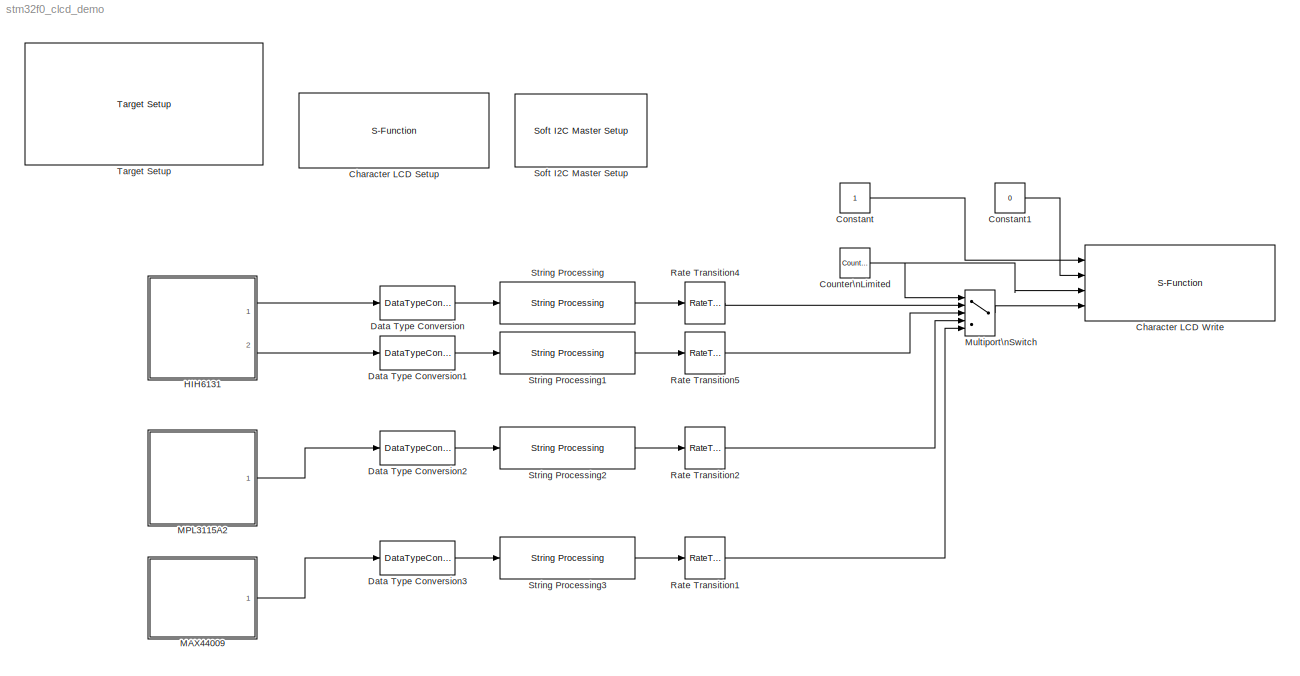
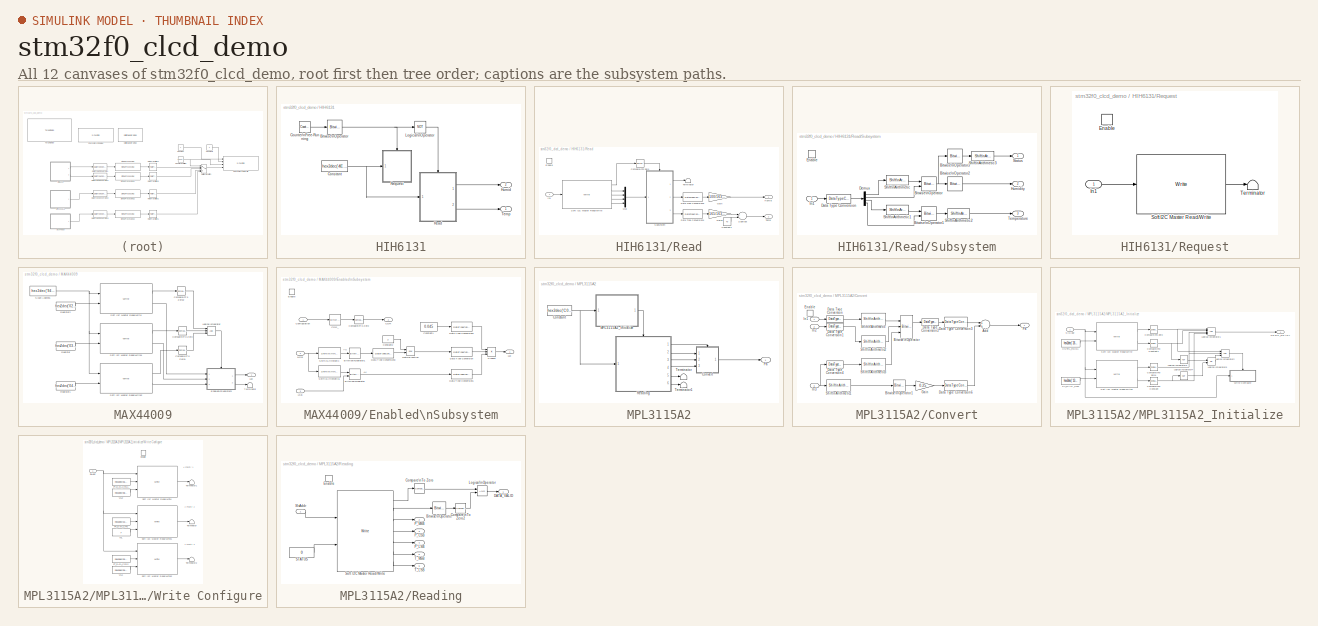
[diagram: thumbnail index - all 12 canvases of the model, root first then tree order]
MODEL stm32f0_clcd_demo
KIND model
CONFIG PreLoadFcn = waijung.modelPreload; % Required for working with Waijung Blockset. Do not remove.
BLOCK [S-Function] Character LCD Setup
  EnableBusSupport = off
  FunctionName = amg_clcd
  MaskCallbackString = amg_clcd_callback('configuration');||||||||||||||||amg_clcd_callback('usestringbuffer');||amg_clcd_callback('varname');|||amg_clcd_callback('confstr');|amg_clcd_callback('sampletime');|amg_clcd_callback('sampletimestr');|amg_clcd_callback('blockid');
  MaskDisplay = text(0.5, 0.5, 'Module: CLCD1 (Setup)\\nInterface: 4-bits\\nCntrl: B2/B10/B11\\nD[7:4]: B12/B13/B0/B1\\nTs (sec): 0.1','ver','middle','hor','center');
  MaskEnableString = on,on,on,off,off,on,on,on,on,on,on,on,on,on,on,on,on,on,off,off,off,on,on,on,on
  MaskHelp = web(fullfile(waijungdocroot,'amg_clcd_setup.htm'), '-browser')
  MaskIconFrame = on
  MaskIconOpaque = on
  MaskIconRotate = none
  MaskIconUnits = normalized
  MaskInitialization = amg_clcd_callback('init');
  MaskPortRotate = default
  MaskPromptString = Configuration:|Module:|LCD model:|Interface:|Number of lines (2 or 4):|Number of columns (16 or 20):|GPIO Output type:|GPIO control port:|GPIO control pin, RS:|GPIO control pin, RW:|GPIO control pin, EN:|GPIO data D[7:4] port|GPIO data pin, D4:|GPIO data pin, D5:|GPIO data pin, D6:|GPIO data pin, D7:|Use string buffer|String buffer|Variable name|Input type array|Output type array|Configuration str...<+66ch>
  MaskSelfModifiable = on
  MaskStyleString = popup(Setup|Transaction),popup(1|2|3|4),popup(amg CLCD Std),popup(4-bits),edit,edit,popup(Push-pull|Open-drain),popup(A|B|C|D|E|F|G|H|I),popup(0|1|2|3|4|5|6|7|8|9|10|11|12|13|14|15),popup(0|1|2|3|4|5|6|7|8|9|10|11|12|13|14|15),popup(0|1|2|3|4|5|6|7|8|9|10|11|12|13|14|15),popup(A|B|C|D|E|F|G|H|I),popup(0|1|2|3|4|5|6|7|8|9|10|11|12|13|14|15),popup(0|1|2|3|4|5|6|7|8|9|10|11|12|13|14|15),popup(0|1|2|3...<+135ch>
  MaskTabNameString = ,,,,,,,,,,,,,,,,,,,,,,,,
  MaskToolTipString = on,on,on,on,on,on,on,on,on,on,on,on,on,on,on,on,on,on,on,on,on,on,on,on,on
  MaskTunableValueString = off,off,off,off,off,off,off,off,off,off,off,off,off,off,off,off,off,off,off,off,off,off,off,off,off
  MaskType = amg_clcd
  MaskValueString = Setup|1|amg CLCD Std|4-bits|4|16|Push-pull|B|2|10|11|B|12|13|0|1|off|<empty>||[0]|[0]|[\"4\",\"4\",\"16\",\"PP\",\"B\",\"2\",\"11\",\"10\",\"\",\"B\",\"\",\"\",\"\",\"\",\"12\",\"13\",\"0\",\"1\",\"0\",\"\",\"0\",\"1\",\"0\",\"0\",\"0\",\"0\",\"0\",\"0\",\"0\",\"stm32f0\"]|-1|0.1|CharacterLCDSetup
  MaskVarAliasString = ,,,,,,,,,,,,,,,,,,,,,,,,
  MaskVariables = configuration=&1;module=&2;model=&3;interface=&4;linecount=@5;columncount=@6;gpiotype=&7;controlport=&8;control_rs=&9;control_rw=&10;control_en=&11;dataport=&12;data0=&13;data1=&14;data2=&15;data3=&16;usestringbuffer=@17;stringbuffer=&18;varname=&19;inputtypearray=@20;outputtypearray=@21;confstr=&22;sampletime=@23;sampletimestr=&24;blockid=&25;
  MaskVisibilityString = off,on,off,on,off,on,on,on,on,on,on,on,on,on,on,on,off,off,off,off,off,off,off,off,off
  Parameters = module,configuration,inputtypearray,outputtypearray,confstr,sampletime,sampletimestr,blockid
  Ports = []
BLOCK [S-Function] Character LCD Write
  EnableBusSupport = off
  FunctionName = amg_clcd
  MaskCallbackString = amg_clcd_callback('configuration');||||||||||||||||amg_clcd_callback('usestringbuffer');||amg_clcd_callback('varname');|||amg_clcd_callback('confstr');|amg_clcd_callback('sampletime');|amg_clcd_callback('sampletimestr');|amg_clcd_callback('blockid');
  MaskDescription = Note for cmd:\n1 - Clear specified LCD line display before write data to LCD.\nOtherwise (e.g. 0) - Write data without clearing LCD Line.\n\nPosition:\nx = 0, First Character (from left to right)\ny = 0, Top Line
  MaskDisplay = text(0.5, 0.5, 'Module: CLCD1 (Write)\\nTs (sec): 0.1','ver','middle','hor','center');port_label('input', 1,'cmd');port_label('input', 2,'xpos');port_label('input', 3,'ypos');port_label('input', 4,'str');
  MaskEnableString = on,on,on,off,off,on,on,on,on,on,on,on,on,on,on,on,on,on,off,off,off,on,on,on,on
  MaskHelp = web(fullfile(waijungdocroot,'amg_clcd_write.htm'), '-browser')
  MaskIconFrame = on
  MaskIconOpaque = on
  MaskIconRotate = none
  MaskIconUnits = normalized
  MaskInitialization = amg_clcd_callback('init');
  MaskPortRotate = default
  MaskPromptString = Configuration:|Module:|LCD model:|Interface:|Number of lines:|Number of columns:|GPIO Output type:|GPIO control port:|GPIO control pin, RS:|GPIO control pin, RW:|GPIO control pin, EN:|GPIO data D[7:4] port|GPIO data pin, D4:|GPIO data pin, D5:|GPIO data pin, D6:|GPIO data pin, D7:|Use string buffer|String buffer|Variable name|Input type array|Output type array|Configuration string|Sample time (sec...<+46ch>
  MaskSelfModifiable = on
  MaskStyleString = popup(Setup|Transaction),popup(1|2|3|4),popup(amg CLCD Std),popup(4-bits),edit,edit,popup(Push-pull|Open-drain),popup(A|B|C|D|E|F|G|H|I),popup(0|1|2|3|4|5|6|7|8|9|10|11|12|13|14|15),popup(0|1|2|3|4|5|6|7|8|9|10|11|12|13|14|15),popup(0|1|2|3|4|5|6|7|8|9|10|11|12|13|14|15),popup(A|B|C|D|E|F|G|H|I),popup(0|1|2|3|4|5|6|7|8|9|10|11|12|13|14|15),popup(0|1|2|3|4|5|6|7|8|9|10|11|12|13|14|15),popup(0|1|2|3...<+135ch>
  MaskTabNameString = ,,,,,,,,,,,,,,,,,,,,,,,,
  MaskToolTipString = on,on,on,on,on,on,on,on,on,on,on,on,on,on,on,on,on,on,on,on,on,on,on,on,on
  MaskTunableValueString = off,off,off,off,off,off,off,off,off,off,off,off,off,off,off,off,off,off,off,off,off,off,off,off,off
  MaskType = amg_clcd
  MaskValueString = Transaction|1|amg CLCD Std|4-bits|4|20|Push-pull|E|15|13|11|A|7|5|3|1|off|<empty>||[4 -1 -1 -1 -1]|[0]|[\"4\",\"4\",\"20\",\"PP\",\"E\",\"15\",\"11\",\"13\",\"\",\"A\",\"\",\"\",\"\",\"\",\"7\",\"5\",\"3\",\"1\",\"0\",\"\",\"1\",\"0\",\"0\",\"0\",\"1\",\"0\",\"0\",\"0\",\"0\",\"stm32f0\"]|-1|0.1|CharacterLCDWrite
  MaskVarAliasString = ,,,,,,,,,,,,,,,,,,,,,,,,
  MaskVariables = configuration=&1;module=&2;model=&3;interface=&4;linecount=@5;columncount=@6;gpiotype=&7;controlport=&8;control_rs=&9;control_rw=&10;control_en=&11;dataport=&12;data0=&13;data1=&14;data2=&15;data3=&16;usestringbuffer=@17;stringbuffer=&18;varname=&19;inputtypearray=@20;outputtypearray=@21;confstr=&22;sampletime=@23;sampletimestr=&24;blockid=&25;
  MaskVisibilityString = off,on,off,off,off,off,off,off,off,off,off,off,off,off,off,off,on,off,off,off,off,off,on,off,off
  Parameters = module,configuration,inputtypearray,outputtypearray,confstr,sampletime,sampletimestr,blockid
  Ports = [4]
BLOCK [Constant] Constant
  OutDataType = fixdt(1, 16)
  OutScaling = 2^0
BLOCK [Constant] Constant1
  OutDataType = fixdt(1, 16)
  OutScaling = 2^0
  Value = 0
BLOCK [Reference] Counter\nLimited  REF=simulink/Sources/Counter\nLimited
  FunctionWithSeparateData = off
  Ports = [0, 1]
  RTWMemSecDataConstants = Inherit from model
  RTWMemSecDataInternal = Inherit from model
  RTWMemSecDataParameters = Inherit from model
  RTWMemSecFuncExecute = Inherit from model
  RTWMemSecFuncInitTerm = Inherit from model
  ShowPortLabels = FromPortIcon
  SourceBlock = simulink/Sources/Counter\nLimited
  SourceType = Counter Limited
  SystemSampleTime = -1
  tsamp = -1
  uplimit = 3
BLOCK [DataTypeConversion] Data Type Conversion
  OutDataType = fixdt(1, 16)
  OutDataTypeMode = single
  OutDataTypeStr = single
  OutScaling = 2^0
  RndMeth = Floor
  SaturateOnIntegerOverflow = off
BLOCK [DataTypeConversion] Data Type Conversion1
  OutDataType = fixdt(1, 16)
  OutDataTypeMode = single
  OutDataTypeStr = single
  OutScaling = 2^0
  RndMeth = Floor
  SaturateOnIntegerOverflow = off
BLOCK [DataTypeConversion] Data Type Conversion2
  OutDataType = fixdt(1, 16)
  OutDataTypeMode = single
  OutDataTypeStr = single
  OutScaling = 2^0
  RndMeth = Floor
  SaturateOnIntegerOverflow = off
BLOCK [DataTypeConversion] Data Type Conversion3
  OutDataType = fixdt(1, 16)
  OutDataTypeMode = single
  OutDataTypeStr = single
  OutScaling = 2^0
  RndMeth = Floor
  SaturateOnIntegerOverflow = off
BLOCK [SubSystem] HIH6131
  FunctionWithSeparateData = off
  MaskHideContents = off
  MinAlgLoopOccurrences = off
  Opaque = off
  Ports = [0, 2]
  PropExecContextOutsideSubsystem = off
  RTWSystemCode = Auto
  RequestExecContextInheritance = off
BLOCK [Reference] HIH6131/Bitwise\nOperator  REF=simulink/Logic and Bit\nOperations/Bitwise\nOperator
  BitMask = 1
  BitMaskRealWorld = Stored Integer
  NumInputPorts = 1
  Ports = [1, 1]
  SourceBlock = simulink/Logic and Bit\nOperations/Bitwise\nOperator
  SourceType = Bitwise Operator
  UseBitMask = on
  logicop = AND
BLOCK [Constant] HIH6131/Constant
  OutDataType = fixdt(1, 16)
  OutDataTypeMode = uint8
  OutDataTypeStr = uint8
  OutScaling = 2^0
  SampleTime = 0.5
  Value = hex2dec('4E')
BLOCK [Reference] HIH6131/Counter\nFree-Running  REF=simulink/Sources/Counter\nFree-Running
  FunctionWithSeparateData = off
  NumBits = 16
  Ports = [0, 1]
  RTWMemSecDataConstants = Inherit from model
  RTWMemSecDataInternal = Inherit from model
  RTWMemSecDataParameters = Inherit from model
  RTWMemSecFuncExecute = Inherit from model
  RTWMemSecFuncInitTerm = Inherit from model
  ShowPortLabels = FromPortIcon
  SourceBlock = simulink/Sources/Counter\nFree-Running
  SourceType = Counter Free-Running
  SystemSampleTime = -1
  tsamp = -1
BLOCK [Outport] HIH6131/Humid
  IconDisplay = Port number
  Port = 2
BLOCK [Logic] HIH6131/Logical\nOperator
  AllPortsSameDT = off
  LogicDataType = fixdt(0, 8)
  Operator = NOT
  OutDataTypeMode = boolean
  OutDataTypeStr = boolean
  Ports = [1, 1]
BLOCK [SubSystem] HIH6131/Read
  FunctionWithSeparateData = off
  MaskHideContents = off
  MinAlgLoopOccurrences = off
  Opaque = off
  Ports = [1, 2, 1]
  PropExecContextOutsideSubsystem = off
  RTWSystemCode = Auto
  RequestExecContextInheritance = off
BLOCK [Reference] HIH6131/Read/Compare\nTo Zero  REF=simulink/Logic and Bit\nOperations/Compare\nTo Zero
  FunctionWithSeparateData = off
  LogicOutDataTypeMode = boolean
  Ports = [1, 1]
  RTWMemSecDataConstants = Inherit from model
  RTWMemSecDataInternal = Inherit from model
  RTWMemSecDataParameters = Inherit from model
  RTWMemSecFuncExecute = Inherit from model
  RTWMemSecFuncInitTerm = Inherit from model
  ShowPortLabels = FromPortIcon
  SourceBlock = simulink/Logic and Bit\nOperations/Compare\nTo Zero
  SourceType = Compare To Zero
  SystemSampleTime = -1
  ZeroCross = off
  relop = ==
BLOCK [Constant] HIH6131/Read/Constant1
  OutDataType = fixdt(1, 16)
  OutDataTypeMode = single
  OutDataTypeStr = single
  OutScaling = 2^0
  Value = 40
BLOCK [DataTypeConversion] HIH6131/Read/Data Type Conversion3
  OutDataType = fixdt(1, 16)
  OutDataTypeMode = single
  OutDataTypeStr = single
  OutScaling = 2^0
  RndMeth = Floor
  SaturateOnIntegerOverflow = off
BLOCK [DataTypeConversion] HIH6131/Read/Data Type Conversion4
  OutDataType = fixdt(1, 16)
  OutDataTypeMode = single
  OutDataTypeStr = single
  OutScaling = 2^0
  RndMeth = Floor
  SaturateOnIntegerOverflow = off
BLOCK [EnablePort] HIH6131/Read/Enable
  Ports = []
BLOCK [Gain] HIH6131/Read/Gain
  Gain = 100/16382
  OutDataType = fixdt(1, 16)
  OutDataTypeMode = Inherit via internal rule
  OutDataTypeStr = Inherit: Inherit via internal rule
  OutScaling = 2^0
  ParamDataTypeStr = Inherit: Inherit via internal rule
  ParameterDataType = fixdt(1, 16)
  ParameterDataTypeMode = Inherit via internal rule
  ParameterScaling = 2^0
  SaturateOnIntegerOverflow = off
BLOCK [Gain] HIH6131/Read/Gain1
  Gain = 165/16382
  OutDataType = fixdt(1, 16)
  OutDataTypeMode = Inherit via internal rule
  OutDataTypeStr = Inherit: Inherit via internal rule
  OutScaling = 2^0
  ParamDataTypeStr = Inherit: Inherit via internal rule
  ParameterDataType = fixdt(1, 16)
  ParameterDataTypeMode = Inherit via internal rule
  ParameterScaling = 2^0
  SaturateOnIntegerOverflow = off
BLOCK [Outport] HIH6131/Read/Humid
  IconDisplay = Port number
  OutDataType = fixdt(1, 16)
  OutScaling = 2^0
BLOCK [Inport] HIH6131/Read/In1
  IconDisplay = Port number
BLOCK [Mux] HIH6131/Read/Mux
  DisplayOption = bar
  Ports = [4, 1]
BLOCK [Reference] HIH6131/Read/Soft I2C Master Read//Write  REF=waijung_soft_i2c_lib/Soft I2C Master Read//Write
  Ports = [1, 5]
  SourceBlock = waijung_soft_i2c_lib/Soft I2C Master Read//Write
  SourceType = waijung_soft_i2c
  blockid = HIH6131ReadSoftI2CMasterReadWrite
  clk = 100
  compat = 0
  conf = ReadWrite
  forcestop = off
  inputportlabel = {'SlvAddr'}
  inputporttype = [3]
  inputportwidth = []
  module = 1
  optionstring = [\"1\",\"0\",\"4\",\"0\",\"off\",\"1\"]
  outputportlabel = {'Status' 'Rd0 (uint8)' 'Rd1 (uint8)' 'Rd2 (uint8)' 'Rd3 (uint8)'}
  outputporttype = [3 3 3 3 3    ]
  outputportwidth = [1 1 1 1 1]
  portpinstr = 0
  readcount = 4
  sampletime = inf
  sclpins = 'A5'
  sdapins = {'A4','A6'}
  targetname = stm32f0
  timeout = 25
  transfer = Blocking
  waittime = 0
  writecount = 0
BLOCK [SubSystem] HIH6131/Read/Subsystem
  FunctionWithSeparateData = off
  MaskHideContents = off
  MinAlgLoopOccurrences = off
  Opaque = off
  Ports = [1, 3, 1]
  PropExecContextOutsideSubsystem = off
  RTWSystemCode = Auto
  RequestExecContextInheritance = off
BLOCK [Reference] HIH6131/Read/Subsystem/Bitwise\nOperator  REF=simulink/Logic and Bit\nOperations/Bitwise\nOperator
  BitMask = bin2dec('11011001')
  BitMaskRealWorld = Stored Integer
  NumInputPorts = 2
  Ports = [2, 1]
  SourceBlock = simulink/Logic and Bit\nOperations/Bitwise\nOperator
  SourceType = Bitwise Operator
  UseBitMask = off
  logicop = OR
BLOCK [Reference] HIH6131/Read/Subsystem/Bitwise\nOperator1  REF=simulink/Logic and Bit\nOperations/Bitwise\nOperator
  BitMask = bin2dec('11011001')
  BitMaskRealWorld = Stored Integer
  NumInputPorts = 2
  Ports = [2, 1]
  SourceBlock = simulink/Logic and Bit\nOperations/Bitwise\nOperator
  SourceType = Bitwise Operator
  UseBitMask = off
  logicop = OR
BLOCK [Reference] HIH6131/Read/Subsystem/Bitwise\nOperator2  REF=simulink/Logic and Bit\nOperations/Bitwise\nOperator
  BitMask = hex2dec('3FFF')
  BitMaskRealWorld = Stored Integer
  NumInputPorts = 1
  Ports = [1, 1]
  SourceBlock = simulink/Logic and Bit\nOperations/Bitwise\nOperator
  SourceType = Bitwise Operator
  UseBitMask = on
  logicop = AND
BLOCK [Reference] HIH6131/Read/Subsystem/Bitwise\nOperator3  REF=simulink/Logic and Bit\nOperations/Bitwise\nOperator
  BitMask = hex2dec('C000')
  BitMaskRealWorld = Stored Integer
  NumInputPorts = 1
  Ports = [1, 1]
  SourceBlock = simulink/Logic and Bit\nOperations/Bitwise\nOperator
  SourceType = Bitwise Operator
  UseBitMask = on
  logicop = AND
BLOCK [DataTypeConversion] HIH6131/Read/Subsystem/Data Type Conversion
  OutDataType = fixdt(1, 16)
  OutDataTypeMode = uint16
  OutDataTypeStr = uint16
  OutScaling = 2^0
  RndMeth = Floor
  SaturateOnIntegerOverflow = off
BLOCK [Demux] HIH6131/Read/Subsystem/Demux
  DisplayOption = bar
  Ports = [1, 4]
BLOCK [EnablePort] HIH6131/Read/Subsystem/Enable
  Ports = []
BLOCK [Outport] HIH6131/Read/Subsystem/Humidity
  IconDisplay = Port number
  Port = 2
BLOCK [Inport] HIH6131/Read/Subsystem/In1
  IconDisplay = Port number
BLOCK [Reference] HIH6131/Read/Subsystem/Shift\nArithmetic  REF=simulink/Logic and Bit\nOperations/Shift\nArithmetic
  FunctionWithSeparateData = off
  Ports = [1, 1]
  RTWMemSecDataConstants = Inherit from model
  RTWMemSecDataInternal = Inherit from model
  RTWMemSecDataParameters = Inherit from model
  RTWMemSecFuncExecute = Inherit from model
  RTWMemSecFuncInitTerm = Inherit from model
  ShowPortLabels = FromPortIcon
  SourceBlock = simulink/Logic and Bit\nOperations/Shift\nArithmetic
  SourceType = Shift Arithmetic
  SystemSampleTime = -1
  nBinPtShiftRight = 0
  nBitShiftRight = -8
BLOCK [Reference] HIH6131/Read/Subsystem/Shift\nArithmetic1  REF=simulink/Logic and Bit\nOperations/Shift\nArithmetic
  FunctionWithSeparateData = off
  Ports = [1, 1]
  RTWMemSecDataConstants = Inherit from model
  RTWMemSecDataInternal = Inherit from model
  RTWMemSecDataParameters = Inherit from model
  RTWMemSecFuncExecute = Inherit from model
  RTWMemSecFuncInitTerm = Inherit from model
  ShowPortLabels = FromPortIcon
  SourceBlock = simulink/Logic and Bit\nOperations/Shift\nArithmetic
  SourceType = Shift Arithmetic
  SystemSampleTime = -1
  nBinPtShiftRight = 0
  nBitShiftRight = -8
BLOCK [Reference] HIH6131/Read/Subsystem/Shift\nArithmetic2  REF=simulink/Logic and Bit\nOperations/Shift\nArithmetic
  FunctionWithSeparateData = off
  Ports = [1, 1]
  RTWMemSecDataConstants = Inherit from model
  RTWMemSecDataInternal = Inherit from model
  RTWMemSecDataParameters = Inherit from model
  RTWMemSecFuncExecute = Inherit from model
  RTWMemSecFuncInitTerm = Inherit from model
  ShowPortLabels = FromPortIcon
  SourceBlock = simulink/Logic and Bit\nOperations/Shift\nArithmetic
  SourceType = Shift Arithmetic
  SystemSampleTime = -1
  nBinPtShiftRight = 0
  nBitShiftRight = 2
BLOCK [Reference] HIH6131/Read/Subsystem/Shift\nArithmetic3  REF=simulink/Logic and Bit\nOperations/Shift\nArithmetic
  FunctionWithSeparateData = off
  Ports = [1, 1]
  RTWMemSecDataConstants = Inherit from model
  RTWMemSecDataInternal = Inherit from model
  RTWMemSecDataParameters = Inherit from model
  RTWMemSecFuncExecute = Inherit from model
  RTWMemSecFuncInitTerm = Inherit from model
  ShowPortLabels = FromPortIcon
  SourceBlock = simulink/Logic and Bit\nOperations/Shift\nArithmetic
  SourceType = Shift Arithmetic
  SystemSampleTime = -1
  nBinPtShiftRight = 0
  nBitShiftRight = 14
BLOCK [Outport] HIH6131/Read/Subsystem/Status
  IconDisplay = Port number
BLOCK [Outport] HIH6131/Read/Subsystem/Temperature
  IconDisplay = Port number
  Port = 3
BLOCK [Sum] HIH6131/Read/Subtract
  InputSameDT = off
  Inputs = +-
  OutDataType = fixdt(1, 16)
  OutDataTypeMode = Inherit via internal rule
  OutDataTypeStr = Inherit: Inherit via internal rule
  OutScaling = 2^-10
  Ports = [2, 1]
  SaturateOnIntegerOverflow = off
BLOCK [Outport] HIH6131/Read/Temp
  IconDisplay = Port number
  OutDataType = fixdt(1, 16)
  OutScaling = 2^0
  Port = 2
BLOCK [Terminator] HIH6131/Read/Terminator
BLOCK [SubSystem] HIH6131/Request
  FunctionWithSeparateData = off
  MaskHideContents = off
  MinAlgLoopOccurrences = off
  Opaque = off
  Ports = [1, 0, 1]
  PropExecContextOutsideSubsystem = off
  RTWSystemCode = Auto
  RequestExecContextInheritance = off
BLOCK [EnablePort] HIH6131/Request/Enable
  Ports = []
BLOCK [Inport] HIH6131/Request/In1
  IconDisplay = Port number
BLOCK [Reference] HIH6131/Request/Soft I2C Master Read//Write  REF=waijung_soft_i2c_lib/Soft I2C Master Read//Write
  Ports = [1, 1]
  SourceBlock = waijung_soft_i2c_lib/Soft I2C Master Read//Write
  SourceType = waijung_soft_i2c
  blockid = HIH6131RequestSoftI2CMasterReadWrite
  clk = 100
  compat = 0
  conf = ReadWrite
  forcestop = off
  inputportlabel = {'SlvAddr'}
  inputporttype = [3]
  inputportwidth = []
  module = 1
  optionstring = [\"1\",\"0\",\"0\",\"0\",\"off\",\"1\"]
  outputportlabel = {'Status'}
  outputporttype = [3]
  outputportwidth = [1]
  portpinstr = 0
  readcount = 0
  sampletime = inf
  sclpins = 'A5'
  sdapins = {'A4','A6'}
  targetname = stm32f0
  timeout = 25
  transfer = Blocking
  waittime = 0
  writecount = 0
BLOCK [Terminator] HIH6131/Request/Terminator
BLOCK [Outport] HIH6131/Temp
  IconDisplay = Port number
BLOCK [SubSystem] MAX44009
  FunctionWithSeparateData = off
  MaskHideContents = off
  MinAlgLoopOccurrences = off
  Opaque = off
  Ports = [0, 1]
  PropExecContextOutsideSubsystem = off
  RTWSystemCode = Auto
  RequestExecContextInheritance = off
BLOCK [Reference] MAX44009/Compare\nTo Zero  REF=simulink/Logic and Bit\nOperations/Compare\nTo Zero
  FunctionWithSeparateData = off
  LogicOutDataTypeMode = uint8
  Ports = [1, 1]
  RTWMemSecDataConstants = Inherit from model
  RTWMemSecDataInternal = Inherit from model
  RTWMemSecDataParameters = Inherit from model
  RTWMemSecFuncExecute = Inherit from model
  RTWMemSecFuncInitTerm = Inherit from model
  ShowPortLabels = FromPortIcon
  SourceBlock = simulink/Logic and Bit\nOperations/Compare\nTo Zero
  SourceType = Compare To Zero
  SystemSampleTime = -1
  ZeroCross = off
  relop = ==
BLOCK [Reference] MAX44009/Compare\nTo Zero1  REF=simulink/Logic and Bit\nOperations/Compare\nTo Zero
  FunctionWithSeparateData = off
  LogicOutDataTypeMode = uint8
  Ports = [1, 1]
  RTWMemSecDataConstants = Inherit from model
  RTWMemSecDataInternal = Inherit from model
  RTWMemSecDataParameters = Inherit from model
  RTWMemSecFuncExecute = Inherit from model
  RTWMemSecFuncInitTerm = Inherit from model
  ShowPortLabels = FromPortIcon
  SourceBlock = simulink/Logic and Bit\nOperations/Compare\nTo Zero
  SourceType = Compare To Zero
  SystemSampleTime = -1
  ZeroCross = off
  relop = ==
BLOCK [Reference] MAX44009/Compare\nTo Zero2  REF=simulink/Logic and Bit\nOperations/Compare\nTo Zero
  FunctionWithSeparateData = off
  LogicOutDataTypeMode = uint8
  Ports = [1, 1]
  RTWMemSecDataConstants = Inherit from model
  RTWMemSecDataInternal = Inherit from model
  RTWMemSecDataParameters = Inherit from model
  RTWMemSecFuncExecute = Inherit from model
  RTWMemSecFuncInitTerm = Inherit from model
  ShowPortLabels = FromPortIcon
  SourceBlock = simulink/Logic and Bit\nOperations/Compare\nTo Zero
  SourceType = Compare To Zero
  SystemSampleTime = -1
  ZeroCross = off
  relop = ==
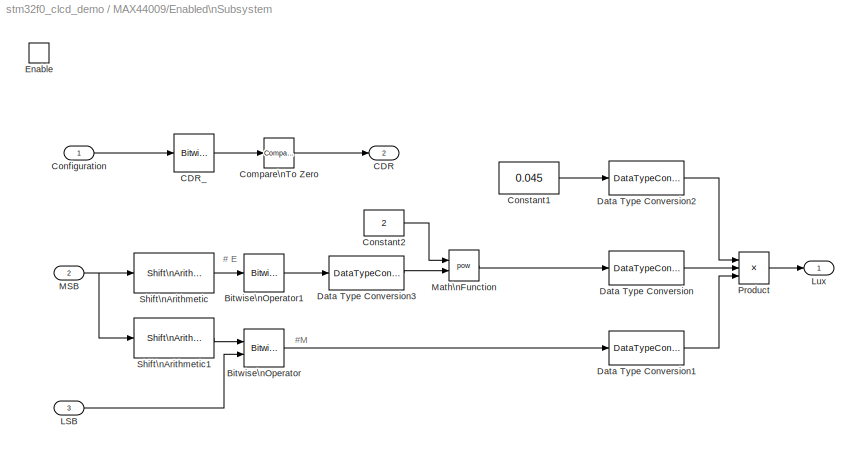
BLOCK [SubSystem] MAX44009/Enabled\nSubsystem
  FunctionWithSeparateData = off
  MaskHideContents = off
  MinAlgLoopOccurrences = off
  Opaque = off
  Ports = [3, 2, 1]
  PropExecContextOutsideSubsystem = off
  RTWSystemCode = Auto
  RequestExecContextInheritance = off
  TreatAsAtomicUnit = on
BLOCK [Reference] MAX44009/Enabled\nSubsystem/Bitwise\nOperator  REF=simulink/Logic and Bit\nOperations/Bitwise\nOperator
  BitMask = bin2dec('11011001')
  BitMaskRealWorld = Stored Integer
  NumInputPorts = 2
  Ports = [2, 1]
  SourceBlock = simulink/Logic and Bit\nOperations/Bitwise\nOperator
  SourceType = Bitwise Operator
  UseBitMask = off
  logicop = OR
BLOCK [Reference] MAX44009/Enabled\nSubsystem/Bitwise\nOperator1  REF=simulink/Logic and Bit\nOperations/Bitwise\nOperator
  BitMask = hex2dec('F')
  BitMaskRealWorld = Stored Integer
  NumInputPorts = 1
  Ports = [1, 1]
  SourceBlock = simulink/Logic and Bit\nOperations/Bitwise\nOperator
  SourceType = Bitwise Operator
  UseBitMask = on
  logicop = AND
BLOCK [Outport] MAX44009/Enabled\nSubsystem/CDR
  IconDisplay = Port number
  OutDataType = fixdt(1, 16)
  OutScaling = 2^0
  Port = 2
BLOCK [Reference] MAX44009/Enabled\nSubsystem/CDR_  REF=simulink/Logic and Bit\nOperations/Bitwise\nOperator
  BitMask = 8
  BitMaskRealWorld = Stored Integer
  NumInputPorts = 1
  Ports = [1, 1]
  SourceBlock = simulink/Logic and Bit\nOperations/Bitwise\nOperator
  SourceType = Bitwise Operator
  UseBitMask = on
  logicop = AND
BLOCK [Reference] MAX44009/Enabled\nSubsystem/Compare\nTo Zero  REF=simulink/Logic and Bit\nOperations/Compare\nTo Zero
  FunctionWithSeparateData = off
  LogicOutDataTypeMode = uint8
  Ports = [1, 1]
  RTWMemSecDataConstants = Inherit from model
  RTWMemSecDataInternal = Inherit from model
  RTWMemSecDataParameters = Inherit from model
  RTWMemSecFuncExecute = Inherit from model
  RTWMemSecFuncInitTerm = Inherit from model
  ShowPortLabels = FromPortIcon
  SourceBlock = simulink/Logic and Bit\nOperations/Compare\nTo Zero
  SourceType = Compare To Zero
  SystemSampleTime = -1
  ZeroCross = off
  relop = ~=
BLOCK [Inport] MAX44009/Enabled\nSubsystem/Configuration
  IconDisplay = Port number
  OutDataType = fixdt(1, 16)
  OutScaling = 2^0
BLOCK [Constant] MAX44009/Enabled\nSubsystem/Constant1
  OutDataType = fixdt(1, 16)
  OutScaling = 2^0
  Value = 0.045
BLOCK [Constant] MAX44009/Enabled\nSubsystem/Constant2
  OutDataType = fixdt(1, 16)
  OutDataTypeMode = single
  OutDataTypeStr = single
  OutScaling = 2^0
  Value = 2
BLOCK [DataTypeConversion] MAX44009/Enabled\nSubsystem/Data Type Conversion
  OutDataType = fixdt(1, 16)
  OutDataTypeMode = single
  OutDataTypeStr = single
  OutScaling = 2^0
  RndMeth = Floor
  SaturateOnIntegerOverflow = off
BLOCK [DataTypeConversion] MAX44009/Enabled\nSubsystem/Data Type Conversion1
  OutDataType = fixdt(1, 16)
  OutDataTypeMode = single
  OutDataTypeStr = single
  OutScaling = 2^0
  RndMeth = Floor
  SaturateOnIntegerOverflow = off
BLOCK [DataTypeConversion] MAX44009/Enabled\nSubsystem/Data Type Conversion2
  OutDataType = fixdt(1, 16)
  OutDataTypeMode = single
  OutDataTypeStr = single
  OutScaling = 2^0
  RndMeth = Floor
  SaturateOnIntegerOverflow = off
BLOCK [DataTypeConversion] MAX44009/Enabled\nSubsystem/Data Type Conversion3
  OutDataType = fixdt(1, 16)
  OutDataTypeMode = single
  OutDataTypeStr = single
  OutScaling = 2^0
  RndMeth = Floor
  SaturateOnIntegerOverflow = off
BLOCK [EnablePort] MAX44009/Enabled\nSubsystem/Enable
  Ports = []
BLOCK [Inport] MAX44009/Enabled\nSubsystem/LSB
  IconDisplay = Port number
  OutDataType = fixdt(1, 16)
  OutScaling = 2^0
  Port = 3
BLOCK [Outport] MAX44009/Enabled\nSubsystem/Lux
  IconDisplay = Port number
  OutDataType = fixdt(1, 16)
  OutScaling = 2^0
BLOCK [Inport] MAX44009/Enabled\nSubsystem/MSB
  IconDisplay = Port number
  OutDataType = fixdt(1, 16)
  OutScaling = 2^0
  Port = 2
BLOCK [Math] MAX44009/Enabled\nSubsystem/Math\nFunction
  Operator = pow
  OutDataType = fixdt(1, 16)
  OutScaling = 2^0
  Ports = [2, 1]
BLOCK [Product] MAX44009/Enabled\nSubsystem/Product
  InputSameDT = off
  Inputs = 3
  OutDataType = fixdt(1, 16)
  OutScaling = 2^0
  Ports = [3, 1]
  SaturateOnIntegerOverflow = off
BLOCK [Reference] MAX44009/Enabled\nSubsystem/Shift\nArithmetic  REF=simulink/Logic and Bit\nOperations/Shift\nArithmetic
  FunctionWithSeparateData = off
  Ports = [1, 1]
  RTWMemSecDataConstants = Inherit from model
  RTWMemSecDataInternal = Inherit from model
  RTWMemSecDataParameters = Inherit from model
  RTWMemSecFuncExecute = Inherit from model
  RTWMemSecFuncInitTerm = Inherit from model
  ShowPortLabels = FromPortIcon
  SourceBlock = simulink/Logic and Bit\nOperations/Shift\nArithmetic
  SourceType = Shift Arithmetic
  SystemSampleTime = -1
  nBinPtShiftRight = 0
  nBitShiftRight = 4
BLOCK [Reference] MAX44009/Enabled\nSubsystem/Shift\nArithmetic1  REF=simulink/Logic and Bit\nOperations/Shift\nArithmetic
  FunctionWithSeparateData = off
  Ports = [1, 1]
  RTWMemSecDataConstants = Inherit from model
  RTWMemSecDataInternal = Inherit from model
  RTWMemSecDataParameters = Inherit from model
  RTWMemSecFuncExecute = Inherit from model
  RTWMemSecFuncInitTerm = Inherit from model
  ShowPortLabels = FromPortIcon
  SourceBlock = simulink/Logic and Bit\nOperations/Shift\nArithmetic
  SourceType = Shift Arithmetic
  SystemSampleTime = -1
  nBinPtShiftRight = 0
  nBitShiftRight = -4
BLOCK [Logic] MAX44009/Logical\nOperator
  AllPortsSameDT = off
  Inputs = 3
  LogicDataType = fixdt(0, 8)
  OutDataTypeMode = boolean
  OutDataTypeStr = boolean
  Ports = [3, 1]
BLOCK [Outport] MAX44009/Lux
  IconDisplay = Port number
  OutDataType = fixdt(1, 16)
  OutScaling = 2^0
BLOCK [Constant] MAX44009/Register
  OutDataType = fixdt(1, 16)
  OutDataTypeMode = uint8
  OutDataTypeStr = uint8
  OutScaling = 2^0
  Value = hex2dec('03')
BLOCK [Constant] MAX44009/Register1
  OutDataType = fixdt(1, 16)
  OutDataTypeMode = uint8
  OutDataTypeStr = uint8
  OutScaling = 2^0
  Value = hex2dec('04')
BLOCK [Constant] MAX44009/Register2
  OutDataType = fixdt(1, 16)
  OutDataTypeMode = uint8
  OutDataTypeStr = uint8
  OutScaling = 2^0
  Value = hex2dec('02')
BLOCK [Constant] MAX44009/Slave Address
  OutDataType = fixdt(1, 16)
  OutDataTypeMode = uint8
  OutDataTypeStr = uint8
  OutScaling = 2^0
  SampleTime = 0.5
  Value = hex2dec('94')
BLOCK [Reference] MAX44009/Soft I2C Master Read//Write  REF=waijung_soft_i2c_lib/Soft I2C Master Read//Write
  Ports = [2, 2]
  SourceBlock = waijung_soft_i2c_lib/Soft I2C Master Read//Write
  SourceType = waijung_soft_i2c
  blockid = MAX44009SoftI2CMasterReadWrite
  clk = 100
  compat = 0
  conf = ReadWrite
  forcestop = off
  inputportlabel = {'SlvAddr' 'Wr0 (uint8)'}
  inputporttype = [3 3]
  inputportwidth = []
  module = 1
  optionstring = [\"1\",\"1\",\"1\",\"0\",\"off\",\"1\"]
  outputportlabel = {'Status' 'Rd0 (uint8)'}
  outputporttype = [3 3 ]
  outputportwidth = [1 1]
  portpinstr = 0
  readcount = 1
  sampletime = inf
  sclpins = 'A5'
  sdapins = {'A4','A6'}
  targetname = stm32f0
  timeout = 25
  transfer = Blocking
  waittime = 0
  writecount = 1
BLOCK [Reference] MAX44009/Soft I2C Master Read//Write1  REF=waijung_soft_i2c_lib/Soft I2C Master Read//Write
  Ports = [2, 2]
  SourceBlock = waijung_soft_i2c_lib/Soft I2C Master Read//Write
  SourceType = waijung_soft_i2c
  blockid = MAX44009SoftI2CMasterReadWrite1
  clk = 100
  compat = 0
  conf = ReadWrite
  forcestop = off
  inputportlabel = {'SlvAddr' 'Wr0 (uint8)'}
  inputporttype = [3 3]
  inputportwidth = []
  module = 1
  optionstring = [\"1\",\"1\",\"1\",\"0\",\"off\",\"1\"]
  outputportlabel = {'Status' 'Rd0 (uint8)'}
  outputporttype = [3 3 ]
  outputportwidth = [1 1]
  portpinstr = 0
  readcount = 1
  sampletime = inf
  sclpins = 'A5'
  sdapins = {'A4','A6'}
  targetname = stm32f0
  timeout = 25
  transfer = Blocking
  waittime = 0
  writecount = 1
BLOCK [Reference] MAX44009/Soft I2C Master Read//Write2  REF=waijung_soft_i2c_lib/Soft I2C Master Read//Write
  Ports = [2, 2]
  SourceBlock = waijung_soft_i2c_lib/Soft I2C Master Read//Write
  SourceType = waijung_soft_i2c
  blockid = MAX44009SoftI2CMasterReadWrite2
  clk = 100
  compat = 0
  conf = ReadWrite
  forcestop = off
  inputportlabel = {'SlvAddr' 'Wr0 (uint8)'}
  inputporttype = [3 3]
  inputportwidth = []
  module = 1
  optionstring = [\"1\",\"1\",\"1\",\"0\",\"off\",\"1\"]
  outputportlabel = {'Status' 'Rd0 (uint8)'}
  outputporttype = [3 3 ]
  outputportwidth = [1 1]
  portpinstr = 0
  readcount = 1
  sampletime = inf
  sclpins = 'A5'
  sdapins = {'A4','A6'}
  targetname = stm32f0
  timeout = 25
  transfer = Blocking
  waittime = 0
  writecount = 1
BLOCK [Terminator] MAX44009/Terminator
BLOCK [SubSystem] MPL3115A2
  FunctionWithSeparateData = off
  MaskHideContents = off
  MinAlgLoopOccurrences = off
  Opaque = off
  Ports = [0, 1]
  PropExecContextOutsideSubsystem = off
  RTWSystemCode = Auto
  RequestExecContextInheritance = off
BLOCK [Constant] MPL3115A2/Constant
  OutDataType = fixdt(1, 16)
  OutDataTypeMode = uint8
  OutDataTypeStr = uint8
  OutScaling = 2^0
  SampleTime = 0.5
  Value = hex2dec('C0')
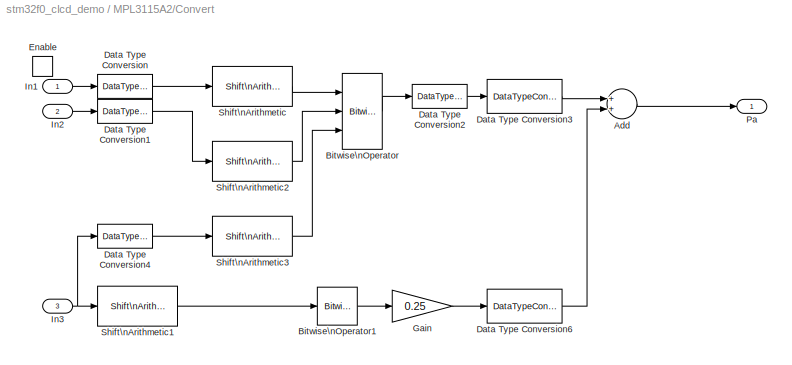
BLOCK [SubSystem] MPL3115A2/Convert
  FunctionWithSeparateData = off
  MaskHideContents = off
  MinAlgLoopOccurrences = off
  Opaque = off
  Ports = [3, 1, 1]
  PropExecContextOutsideSubsystem = off
  RTWSystemCode = Auto
  RequestExecContextInheritance = off
BLOCK [Sum] MPL3115A2/Convert/Add
  InputSameDT = off
  OutDataType = fixdt(1, 16)
  OutDataTypeMode = Inherit via internal rule
  OutDataTypeStr = Inherit: Inherit via internal rule
  OutScaling = 2^-10
  Ports = [2, 1]
  SaturateOnIntegerOverflow = off
BLOCK [Reference] MPL3115A2/Convert/Bitwise\nOperator  REF=simulink/Logic and Bit\nOperations/Bitwise\nOperator
  BitMask = bin2dec('11011001')
  BitMaskRealWorld = Stored Integer
  NumInputPorts = 3
  Ports = [3, 1]
  SourceBlock = simulink/Logic and Bit\nOperations/Bitwise\nOperator
  SourceType = Bitwise Operator
  UseBitMask = off
  logicop = OR
BLOCK [Reference] MPL3115A2/Convert/Bitwise\nOperator1  REF=simulink/Logic and Bit\nOperations/Bitwise\nOperator
  BitMask = 3
  BitMaskRealWorld = Stored Integer
  NumInputPorts = 1
  Ports = [1, 1]
  SourceBlock = simulink/Logic and Bit\nOperations/Bitwise\nOperator
  SourceType = Bitwise Operator
  UseBitMask = on
  logicop = AND
BLOCK [DataTypeConversion] MPL3115A2/Convert/Data Type Conversion
  OutDataType = fixdt(1, 16)
  OutDataTypeMode = uint32
  OutDataTypeStr = uint32
  OutScaling = 2^0
  RndMeth = Floor
  SaturateOnIntegerOverflow = off
BLOCK [DataTypeConversion] MPL3115A2/Convert/Data Type Conversion1
  OutDataType = fixdt(1, 16)
  OutDataTypeMode = uint32
  OutDataTypeStr = uint32
  OutScaling = 2^0
  RndMeth = Floor
  SaturateOnIntegerOverflow = off
BLOCK [DataTypeConversion] MPL3115A2/Convert/Data Type Conversion2
  OutDataType = fixdt(1, 16)
  OutDataTypeMode = uint32
  OutDataTypeStr = uint32
  OutScaling = 2^0
  RndMeth = Floor
  SaturateOnIntegerOverflow = off
BLOCK [DataTypeConversion] MPL3115A2/Convert/Data Type Conversion3
  OutDataType = fixdt(1, 16)
  OutDataTypeMode = single
  OutDataTypeStr = single
  OutScaling = 2^0
  RndMeth = Floor
  SaturateOnIntegerOverflow = off
BLOCK [DataTypeConversion] MPL3115A2/Convert/Data Type Conversion4
  OutDataType = fixdt(1, 16)
  OutDataTypeMode = uint32
  OutDataTypeStr = uint32
  OutScaling = 2^0
  RndMeth = Floor
  SaturateOnIntegerOverflow = off
BLOCK [DataTypeConversion] MPL3115A2/Convert/Data Type Conversion6
  OutDataType = fixdt(1, 16)
  OutDataTypeMode = single
  OutDataTypeStr = single
  OutScaling = 2^0
  RndMeth = Floor
  SaturateOnIntegerOverflow = off
BLOCK [EnablePort] MPL3115A2/Convert/Enable
  Ports = []
BLOCK [Gain] MPL3115A2/Convert/Gain
  Gain = 0.25
  OutDataType = fixdt(1, 16)
  OutDataTypeMode = single
  OutDataTypeStr = single
  OutScaling = 2^0
  ParamDataTypeStr = Inherit: Inherit via internal rule
  ParameterDataType = fixdt(1, 16)
  ParameterDataTypeMode = Inherit via internal rule
  ParameterScaling = 2^0
  SaturateOnIntegerOverflow = off
BLOCK [Inport] MPL3115A2/Convert/In1
  IconDisplay = Port number
BLOCK [Inport] MPL3115A2/Convert/In2
  IconDisplay = Port number
  Port = 2
BLOCK [Inport] MPL3115A2/Convert/In3
  IconDisplay = Port number
  Port = 3
BLOCK [Outport] MPL3115A2/Convert/Pa
  IconDisplay = Port number
  OutDataType = fixdt(1, 16)
  OutScaling = 2^0
BLOCK [Reference] MPL3115A2/Convert/Shift\nArithmetic  REF=simulink/Logic and Bit\nOperations/Shift\nArithmetic
  FunctionWithSeparateData = off
  Ports = [1, 1]
  RTWMemSecDataConstants = Inherit from model
  RTWMemSecDataInternal = Inherit from model
  RTWMemSecDataParameters = Inherit from model
  RTWMemSecFuncExecute = Inherit from model
  RTWMemSecFuncInitTerm = Inherit from model
  ShowPortLabels = FromPortIcon
  SourceBlock = simulink/Logic and Bit\nOperations/Shift\nArithmetic
  SourceType = Shift Arithmetic
  SystemSampleTime = -1
  nBinPtShiftRight = 0
  nBitShiftRight = -10
BLOCK [Reference] MPL3115A2/Convert/Shift\nArithmetic1  REF=simulink/Logic and Bit\nOperations/Shift\nArithmetic
  FunctionWithSeparateData = off
  Ports = [1, 1]
  RTWMemSecDataConstants = Inherit from model
  RTWMemSecDataInternal = Inherit from model
  RTWMemSecDataParameters = Inherit from model
  RTWMemSecFuncExecute = Inherit from model
  RTWMemSecFuncInitTerm = Inherit from model
  ShowPortLabels = FromPortIcon
  SourceBlock = simulink/Logic and Bit\nOperations/Shift\nArithmetic
  SourceType = Shift Arithmetic
  SystemSampleTime = -1
  nBinPtShiftRight = 0
  nBitShiftRight = 4
BLOCK [Reference] MPL3115A2/Convert/Shift\nArithmetic2  REF=simulink/Logic and Bit\nOperations/Shift\nArithmetic
  FunctionWithSeparateData = off
  Ports = [1, 1]
  RTWMemSecDataConstants = Inherit from model
  RTWMemSecDataInternal = Inherit from model
  RTWMemSecDataParameters = Inherit from model
  RTWMemSecFuncExecute = Inherit from model
  RTWMemSecFuncInitTerm = Inherit from model
  ShowPortLabels = FromPortIcon
  SourceBlock = simulink/Logic and Bit\nOperations/Shift\nArithmetic
  SourceType = Shift Arithmetic
  SystemSampleTime = -1
  nBinPtShiftRight = 0
  nBitShiftRight = -2
BLOCK [Reference] MPL3115A2/Convert/Shift\nArithmetic3  REF=simulink/Logic and Bit\nOperations/Shift\nArithmetic
  FunctionWithSeparateData = off
  Ports = [1, 1]
  RTWMemSecDataConstants = Inherit from model
  RTWMemSecDataInternal = Inherit from model
  RTWMemSecDataParameters = Inherit from model
  RTWMemSecFuncExecute = Inherit from model
  RTWMemSecFuncInitTerm = Inherit from model
  ShowPortLabels = FromPortIcon
  SourceBlock = simulink/Logic and Bit\nOperations/Shift\nArithmetic
  SourceType = Shift Arithmetic
  SystemSampleTime = -1
  nBinPtShiftRight = 0
  nBitShiftRight = 6
BLOCK [SubSystem] MPL3115A2/MPL3115A2_Initialize
  FunctionWithSeparateData = off
  MaskHideContents = off
  MinAlgLoopOccurrences = off
  Opaque = off
  Ports = [1, 1]
  PropExecContextOutsideSubsystem = off
  RTWSystemCode = Auto
  RequestExecContextInheritance = off
BLOCK [Constant] MPL3115A2/MPL3115A2_Initialize/CNTRL_REG1
  OutDataType = fixdt(1, 16)
  OutDataTypeMode = uint8
  OutDataTypeStr = uint8
  OutScaling = 2^0
  Value = hex2dec('26')
BLOCK [Reference] MPL3115A2/MPL3115A2_Initialize/Compare\nTo Constant  REF=simulink/Logic and Bit\nOperations/Compare\nTo Constant
  FunctionWithSeparateData = off
  LogicOutDataTypeMode = boolean
  Ports = [1, 1]
  RTWMemSecDataConstants = Inherit from model
  RTWMemSecDataInternal = Inherit from model
  RTWMemSecDataParameters = Inherit from model
  RTWMemSecFuncExecute = Inherit from model
  RTWMemSecFuncInitTerm = Inherit from model
  ShowPortLabels = FromPortIcon
  SourceBlock = simulink/Logic and Bit\nOperations/Compare\nTo Constant
  SourceType = Compare To Constant
  SystemSampleTime = -1
  ZeroCross = off
  const = 7
  relop = ==
BLOCK [Reference] MPL3115A2/MPL3115A2_Initialize/Compare\nTo Constant1  REF=simulink/Logic and Bit\nOperations/Compare\nTo Constant
  FunctionWithSeparateData = off
  LogicOutDataTypeMode = boolean
  Ports = [1, 1]
  RTWMemSecDataConstants = Inherit from model
  RTWMemSecDataInternal = Inherit from model
  RTWMemSecDataParameters = Inherit from model
  RTWMemSecFuncExecute = Inherit from model
  RTWMemSecFuncInitTerm = Inherit from model
  ShowPortLabels = FromPortIcon
  SourceBlock = simulink/Logic and Bit\nOperations/Compare\nTo Constant
  SourceType = Compare To Constant
  SystemSampleTime = -1
  ZeroCross = off
  const = hex2dec('39')
  relop = ==
BLOCK [Reference] MPL3115A2/MPL3115A2_Initialize/Compare\nTo Zero  REF=simulink/Logic and Bit\nOperations/Compare\nTo Zero
  FunctionWithSeparateData = off
  LogicOutDataTypeMode = boolean
  Ports = [1, 1]
  RTWMemSecDataConstants = Inherit from model
  RTWMemSecDataInternal = Inherit from model
  RTWMemSecDataParameters = Inherit from model
  RTWMemSecFuncExecute = Inherit from model
  RTWMemSecFuncInitTerm = Inherit from model
  ShowPortLabels = FromPortIcon
  SourceBlock = simulink/Logic and Bit\nOperations/Compare\nTo Zero
  SourceType = Compare To Zero
  SystemSampleTime = -1
  ZeroCross = off
  relop = ==
BLOCK [Reference] MPL3115A2/MPL3115A2_Initialize/Compare\nTo Zero1  REF=simulink/Logic and Bit\nOperations/Compare\nTo Zero
  FunctionWithSeparateData = off
  LogicOutDataTypeMode = boolean
  Ports = [1, 1]
  RTWMemSecDataConstants = Inherit from model
  RTWMemSecDataInternal = Inherit from model
  RTWMemSecDataParameters = Inherit from model
  RTWMemSecFuncExecute = Inherit from model
  RTWMemSecFuncInitTerm = Inherit from model
  ShowPortLabels = FromPortIcon
  SourceBlock = simulink/Logic and Bit\nOperations/Compare\nTo Zero
  SourceType = Compare To Zero
  SystemSampleTime = -1
  ZeroCross = off
  relop = ==
BLOCK [Logic] MPL3115A2/MPL3115A2_Initialize/Logical\nOperator1
  AllPortsSameDT = off
  Inputs = 4
  LogicDataType = fixdt(0, 8)
  OutDataTypeMode = boolean
  OutDataTypeStr = boolean
  Ports = [4, 1]
BLOCK [Logic] MPL3115A2/MPL3115A2_Initialize/Logical\nOperator2
  AllPortsSameDT = off
  Inputs = 3
  LogicDataType = fixdt(0, 8)
  OutDataTypeMode = boolean
  OutDataTypeStr = boolean
  Ports = [3, 1]
BLOCK [Logic] MPL3115A2/MPL3115A2_Initialize/Logical\nOperator3
  AllPortsSameDT = off
  Inputs = 4
  LogicDataType = fixdt(0, 8)
  Operator = NOT
  OutDataTypeMode = boolean
  OutDataTypeStr = boolean
  Ports = [1, 1]
BLOCK [Logic] MPL3115A2/MPL3115A2_Initialize/Logical\nOperator4
  AllPortsSameDT = off
  Inputs = 4
  LogicDataType = fixdt(0, 8)
  Operator = NOT
  OutDataTypeMode = boolean
  OutDataTypeStr = boolean
  Ports = [1, 1]
BLOCK [Logic] MPL3115A2/MPL3115A2_Initialize/Logical\nOperator5
  AllPortsSameDT = off
  LogicDataType = fixdt(0, 8)
  Operator = OR
  OutDataTypeMode = boolean
  OutDataTypeStr = boolean
  Ports = [2, 1]
BLOCK [Constant] MPL3115A2/MPL3115A2_Initialize/PT_DATA_CFG
  OutDataType = fixdt(1, 16)
  OutDataTypeMode = uint8
  OutDataTypeStr = uint8
  OutScaling = 2^0
  Value = hex2dec('13')
BLOCK [Outport] MPL3115A2/MPL3115A2_Initialize/SETUP_READY
  IconDisplay = Port number
  OutDataType = fixdt(1, 16)
  OutScaling = 2^0
BLOCK [Inport] MPL3115A2/MPL3115A2_Initialize/SlvAddr
  IconDisplay = Port number
  OutDataType = fixdt(1, 16)
  OutScaling = 2^0
BLOCK [Reference] MPL3115A2/MPL3115A2_Initialize/Soft I2C Master Read//Write  REF=waijung_soft_i2c_lib/Soft I2C Master Read//Write
  Ports = [2, 2]
  SourceBlock = waijung_soft_i2c_lib/Soft I2C Master Read//Write
  SourceType = waijung_soft_i2c
  blockid = MPL3115A2MPL3115A2_InitializeSoftI2CMasterReadWrite
  clk = 100
  compat = 0
  conf = ReadWrite
  forcestop = off
  inputportlabel = {'SlvAddr' 'Wr0 (uint8)'}
  inputporttype = [3 3]
  inputportwidth = []
  module = 1
  optionstring = [\"1\",\"1\",\"1\",\"0\",\"off\",\"1\"]
  outputportlabel = {'Status' 'Rd0 (uint8)'}
  outputporttype = [3 3 ]
  outputportwidth = [1 1]
  portpinstr = 0
  readcount = 1
  sampletime = inf
  sclpins = 'A5'
  sdapins = {'A4','A6'}
  targetname = stm32f0
  timeout = 25
  transfer = Blocking
  waittime = 0
  writecount = 1
BLOCK [Reference] MPL3115A2/MPL3115A2_Initialize/Soft I2C Master Read//Write1  REF=waijung_soft_i2c_lib/Soft I2C Master Read//Write
  Ports = [2, 2]
  SourceBlock = waijung_soft_i2c_lib/Soft I2C Master Read//Write
  SourceType = waijung_soft_i2c
  blockid = MPL3115A2MPL3115A2_InitializeSoftI2CMasterReadWrite1
  clk = 100
  compat = 0
  conf = ReadWrite
  forcestop = off
  inputportlabel = {'SlvAddr' 'Wr0 (uint8)'}
  inputporttype = [3 3]
  inputportwidth = []
  module = 1
  optionstring = [\"1\",\"1\",\"1\",\"0\",\"off\",\"1\"]
  outputportlabel = {'Status' 'Rd0 (uint8)'}
  outputporttype = [3 3 ]
  outputportwidth = [1 1]
  portpinstr = 0
  readcount = 1
  sampletime = inf
  sclpins = 'A5'
  sdapins = {'A4','A6'}
  targetname = stm32f0
  timeout = 25
  transfer = Blocking
  waittime = 0
  writecount = 1
BLOCK [SubSystem] MPL3115A2/MPL3115A2_Initialize/Write Configure
  FunctionWithSeparateData = off
  MaskHideContents = off
  MinAlgLoopOccurrences = off
  Opaque = off
  Ports = [1, 0, 1]
  PropExecContextOutsideSubsystem = off
  RTWSystemCode = Auto
  RequestExecContextInheritance = off
  TreatAsAtomicUnit = on
BLOCK [EnablePort] MPL3115A2/MPL3115A2_Initialize/Write Configure/Enable
  Ports = []
BLOCK [Constant] MPL3115A2/MPL3115A2_Initialize/Write Configure/PT_DATA_CFG
  OutDataType = fixdt(1, 16)
  OutDataTypeMode = uint8
  OutDataTypeStr = uint8
  OutScaling = 2^0
  Value = hex2dec('13')
BLOCK [Constant] MPL3115A2/MPL3115A2_Initialize/Write Configure/PT_DATA_CFG1
  OutDataType = fixdt(1, 16)
  OutDataTypeMode = uint8
  OutDataTypeStr = uint8
  OutScaling = 2^0
  Value = hex2dec('26')
BLOCK [Constant] MPL3115A2/MPL3115A2_Initialize/Write Configure/PT_DATA_CFG2
  OutDataType = fixdt(1, 16)
  OutDataTypeMode = uint8
  OutDataTypeStr = uint8
  OutScaling = 2^0
  Value = hex2dec('26')
BLOCK [Inport] MPL3115A2/MPL3115A2_Initialize/Write Configure/SlvAddr
  IconDisplay = Port number
  OutDataType = fixdt(1, 16)
  OutScaling = 2^0
BLOCK [Reference] MPL3115A2/MPL3115A2_Initialize/Write Configure/Soft I2C Master Read//Write  REF=waijung_soft_i2c_lib/Soft I2C Master Read//Write
  Ports = [3, 1]
  SourceBlock = waijung_soft_i2c_lib/Soft I2C Master Read//Write
  SourceType = waijung_soft_i2c
  blockid = MPL3115A2MPL3115A2_InitializeWriteConfigureSoftI2CMasterReadWrite
  clk = 100
  compat = 0
  conf = ReadWrite
  forcestop = off
  inputportlabel = {'SlvAddr' 'Wr0 (uint8)' 'Wr1 (uint8)'}
  inputporttype = [3 3 3]
  inputportwidth = []
  module = 1
  optionstring = [\"1\",\"2\",\"0\",\"0\",\"off\",\"1\"]
  outputportlabel = {'Status'}
  outputporttype = [3]
  outputportwidth = [1]
  portpinstr = 0
  readcount = 0
  sampletime = inf
  sclpins = 'A5'
  sdapins = {'A4','A6'}
  targetname = stm32f0
  timeout = 25
  transfer = Blocking
  waittime = 0
  writecount = 2
BLOCK [Reference] MPL3115A2/MPL3115A2_Initialize/Write Configure/Soft I2C Master Read//Write1  REF=waijung_soft_i2c_lib/Soft I2C Master Read//Write
  Ports = [3, 1]
  SourceBlock = waijung_soft_i2c_lib/Soft I2C Master Read//Write
  SourceType = waijung_soft_i2c
  blockid = MPL3115A2MPL3115A2_InitializeWriteConfigureSoftI2CMasterReadWrite1
  clk = 100
  compat = 0
  conf = ReadWrite
  forcestop = off
  inputportlabel = {'SlvAddr' 'Wr0 (uint8)' 'Wr1 (uint8)'}
  inputporttype = [3 3 3]
  inputportwidth = []
  module = 1
  optionstring = [\"1\",\"2\",\"0\",\"0\",\"off\",\"1\"]
  outputportlabel = {'Status'}
  outputporttype = [3]
  outputportwidth = [1]
  portpinstr = 0
  readcount = 0
  sampletime = inf
  sclpins = 'A5'
  sdapins = {'A4','A6'}
  targetname = stm32f0
  timeout = 25
  transfer = Blocking
  waittime = 0
  writecount = 2
BLOCK [Reference] MPL3115A2/MPL3115A2_Initialize/Write Configure/Soft I2C Master Read//Write2  REF=waijung_soft_i2c_lib/Soft I2C Master Read//Write
  Ports = [3, 1]
  SourceBlock = waijung_soft_i2c_lib/Soft I2C Master Read//Write
  SourceType = waijung_soft_i2c
  blockid = MPL3115A2MPL3115A2_InitializeWriteConfigureSoftI2CMasterReadWrite2
  clk = 100
  compat = 0
  conf = ReadWrite
  forcestop = off
  inputportlabel = {'SlvAddr' 'Wr0 (uint8)' 'Wr1 (uint8)'}
  inputporttype = [3 3 3]
  inputportwidth = []
  module = 1
  optionstring = [\"1\",\"2\",\"0\",\"0\",\"off\",\"1\"]
  outputportlabel = {'Status'}
  outputporttype = [3]
  outputportwidth = [1]
  portpinstr = 0
  readcount = 0
  sampletime = inf
  sclpins = 'A5'
  sdapins = {'A4','A6'}
  targetname = stm32f0
  timeout = 25
  transfer = Blocking
  waittime = 0
  writecount = 2
BLOCK [Terminator] MPL3115A2/MPL3115A2_Initialize/Write Configure/Terminator
BLOCK [Terminator] MPL3115A2/MPL3115A2_Initialize/Write Configure/Terminator1
BLOCK [Terminator] MPL3115A2/MPL3115A2_Initialize/Write Configure/Terminator2
BLOCK [Constant] MPL3115A2/MPL3115A2_Initialize/Write Configure/VAL
  OutDataType = fixdt(1, 16)
  OutDataTypeMode = uint8
  OutDataTypeStr = uint8
  OutScaling = 2^0
  Value = 7
BLOCK [Constant] MPL3115A2/MPL3115A2_Initialize/Write Configure/VAL1
  OutDataType = fixdt(1, 16)
  OutDataTypeMode = uint8
  OutDataTypeStr = uint8
  OutScaling = 2^0
  Value = hex2dec('39')
BLOCK [Constant] MPL3115A2/MPL3115A2_Initialize/Write Configure/VAL2
  OutDataType = fixdt(1, 16)
  OutDataTypeMode = uint8
  OutDataTypeStr = uint8
  OutScaling = 2^0
  Value = hex2dec('38')
BLOCK [Outport] MPL3115A2/Pa
  IconDisplay = Port number
BLOCK [SubSystem] MPL3115A2/Reading
  FunctionWithSeparateData = off
  MaskHideContents = off
  MinAlgLoopOccurrences = off
  Opaque = off
  Ports = [1, 6, 1]
  PropExecContextOutsideSubsystem = off
  RTWSystemCode = Auto
  RequestExecContextInheritance = off
  TreatAsAtomicUnit = on
BLOCK [Reference] MPL3115A2/Reading/Bitwise\nOperator  REF=simulink/Logic and Bit\nOperations/Bitwise\nOperator
  BitMask = 8
  BitMaskRealWorld = Stored Integer
  NumInputPorts = 1
  Ports = [1, 1]
  SourceBlock = simulink/Logic and Bit\nOperations/Bitwise\nOperator
  SourceType = Bitwise Operator
  UseBitMask = on
  logicop = AND
BLOCK [Reference] MPL3115A2/Reading/Compare\nTo Zero  REF=simulink/Logic and Bit\nOperations/Compare\nTo Zero
  FunctionWithSeparateData = off
  LogicOutDataTypeMode = boolean
  Ports = [1, 1]
  RTWMemSecDataConstants = Inherit from model
  RTWMemSecDataInternal = Inherit from model
  RTWMemSecDataParameters = Inherit from model
  RTWMemSecFuncExecute = Inherit from model
  RTWMemSecFuncInitTerm = Inherit from model
  ShowPortLabels = FromPortIcon
  SourceBlock = simulink/Logic and Bit\nOperations/Compare\nTo Zero
  SourceType = Compare To Zero
  SystemSampleTime = -1
  ZeroCross = off
  relop = ==
BLOCK [Reference] MPL3115A2/Reading/Compare\nTo Zero2  REF=simulink/Logic and Bit\nOperations/Compare\nTo Zero
  FunctionWithSeparateData = off
  LogicOutDataTypeMode = boolean
  Ports = [1, 1]
  RTWMemSecDataConstants = Inherit from model
  RTWMemSecDataInternal = Inherit from model
  RTWMemSecDataParameters = Inherit from model
  RTWMemSecFuncExecute = Inherit from model
  RTWMemSecFuncInitTerm = Inherit from model
  ShowPortLabels = FromPortIcon
  SourceBlock = simulink/Logic and Bit\nOperations/Compare\nTo Zero
  SourceType = Compare To Zero
  SystemSampleTime = -1
  ZeroCross = off
  relop = ~=
BLOCK [Outport] MPL3115A2/Reading/DATA_VALID
  IconDisplay = Port number
  OutDataType = fixdt(1, 16)
  OutScaling = 2^0
BLOCK [EnablePort] MPL3115A2/Reading/Enable
  Ports = []
BLOCK [Logic] MPL3115A2/Reading/Logical\nOperator
  AllPortsSameDT = off
  LogicDataType = fixdt(0, 8)
  OutDataTypeMode = boolean
  OutDataTypeStr = boolean
  Ports = [2, 1]
BLOCK [Outport] MPL3115A2/Reading/P_CSB
  IconDisplay = Port number
  OutDataType = fixdt(1, 16)
  OutScaling = 2^0
  Port = 3
BLOCK [Outport] MPL3115A2/Reading/P_LSB
  IconDisplay = Port number
  OutDataType = fixdt(1, 16)
  OutScaling = 2^0
  Port = 4
BLOCK [Outport] MPL3115A2/Reading/P_MSB
  IconDisplay = Port number
  OutDataType = fixdt(1, 16)
  OutScaling = 2^0
  Port = 2
BLOCK [Constant] MPL3115A2/Reading/STATUS
  OutDataType = fixdt(1, 16)
  OutDataTypeMode = uint8
  OutDataTypeStr = uint8
  OutScaling = 2^0
  Value = 0
BLOCK [Inport] MPL3115A2/Reading/SlvAddr
  IconDisplay = Port number
  OutDataType = fixdt(1, 16)
  OutScaling = 2^0
BLOCK [Reference] MPL3115A2/Reading/Soft I2C Master Read//Write  REF=waijung_soft_i2c_lib/Soft I2C Master Read//Write
  Ports = [2, 7]
  SourceBlock = waijung_soft_i2c_lib/Soft I2C Master Read//Write
  SourceType = waijung_soft_i2c
  blockid = MPL3115A2ReadingSoftI2CMasterReadWrite
  clk = 100
  compat = 0
  conf = ReadWrite
  forcestop = off
  inputportlabel = {'SlvAddr' 'Wr0 (uint8)'}
  inputporttype = [3 3]
  inputportwidth = []
  module = 1
  optionstring = [\"1\",\"1\",\"6\",\"0\",\"off\",\"1\"]
  outputportlabel = {'Status' 'Rd0 (uint8)' 'Rd1 (uint8)' 'Rd2 (uint8)' 'Rd3 (uint8)' 'Rd4 (uint8)' 'Rd5 (uint8)'}
  outputporttype = [3 3 3 3 3 3 3      ]
  outputportwidth = [1 1 1 1 1 1 1]
  portpinstr = 0
  readcount = 6
  sampletime = inf
  sclpins = 'A5'
  sdapins = {'A4','A6'}
  targetname = stm32f0
  timeout = 25
  transfer = Blocking
  waittime = 0
  writecount = 1
BLOCK [Outport] MPL3115A2/Reading/T_LSB
  IconDisplay = Port number
  OutDataType = fixdt(1, 16)
  OutScaling = 2^0
  Port = 6
BLOCK [Outport] MPL3115A2/Reading/T_MSB
  IconDisplay = Port number
  OutDataType = fixdt(1, 16)
  OutScaling = 2^0
  Port = 5
BLOCK [Terminator] MPL3115A2/Terminator
BLOCK [Terminator] MPL3115A2/Terminator1
BLOCK [MultiPortSwitch] Multiport\nSwitch
  InputSameDT = off
  Inputs = 4
  OutDataType = fixdt(1, 16)
  OutScaling = 2^0
  Ports = [5, 1]
  SaturateOnIntegerOverflow = off
  zeroidx = on
BLOCK [RateTransition] Rate Transition1
BLOCK [RateTransition] Rate Transition2
BLOCK [RateTransition] Rate Transition4
BLOCK [RateTransition] Rate Transition5
BLOCK [Reference] Soft I2C Master Setup  REF=waijung_soft_i2c_lib/Soft I2C Master Setup
  Ports = []
  SourceBlock = waijung_soft_i2c_lib/Soft I2C Master Setup
  SourceType = waijung_soft_i2c
  blockid = SoftI2CMasterSetup
  clk = 250
  compat = 0
  conf = Setup
  forcestop = off
  inputportlabel = {}
  inputporttype = []
  inputportwidth = []
  module = 1
  optionstring = [\"1\",\"250000\",\"3\",\"2\",\"1\",\"1\",\"25\",\"\",\"\",\"\",\"0\",\"1\",\"0\",\"0\",\"0\",\"0\",\"0\",\"0\",\"0\",\"\",\"1\",\"B\",\"7\",\"B\",\"6\"]
  outputportlabel = {}
  outputporttype = []
  outputportwidth = []
  portpinstr = 0
  readcount = 1
  sampletime = -1
  sclpins = 'B6'
  sdapins = 'B7'
  targetname = stm32f0
  timeout = 25
  transfer = Blocking
  waittime = 0
  writecount = 1
BLOCK [Reference] String Processing  REF=waijung_string_manipulate/String Processing
  Ports = [1, 1]
  SourceBlock = waijung_string_manipulate/String Processing
  SourceType = waijung_string_processing_callback
  begindelimiter = ''
  blockid = StringProcessing
  buffersize = 16
  compat = 0
  conf = processing
  datatypestring = [\"float\"]
  enablestatus = off
  enddelimiter = ''
  inputportlabel = {'%f'}
  inputporttype = [-1]
  inputportwidth = [1]
  optionstring = []
  outputportlabel = {'Output'}
  outputporttype = [3]
  outputportwidth = [16]
  portpinstr = 0
  sampletime = inf
  stringformat = 'Temp:%1.2f'
  stringfunction = sprintf
BLOCK [Reference] String Processing1  REF=waijung_string_manipulate/String Processing
  Ports = [1, 1]
  SourceBlock = waijung_string_manipulate/String Processing
  SourceType = waijung_string_processing_callback
  begindelimiter = ''
  blockid = StringProcessing1
  buffersize = 16
  compat = 0
  conf = processing
  datatypestring = [\"float\"]
  enablestatus = off
  enddelimiter = ''
  inputportlabel = {'%f'}
  inputporttype = [-1]
  inputportwidth = [1]
  optionstring = []
  outputportlabel = {'Output'}
  outputporttype = [3]
  outputportwidth = [16]
  portpinstr = 0
  sampletime = inf
  stringformat = 'Humid:%1.2f'
  stringfunction = sprintf
BLOCK [Reference] String Processing2  REF=waijung_string_manipulate/String Processing
  Ports = [1, 1]
  SourceBlock = waijung_string_manipulate/String Processing
  SourceType = waijung_string_processing_callback
  begindelimiter = ''
  blockid = StringProcessing2
  buffersize = 16
  compat = 0
  conf = processing
  datatypestring = [\"float\"]
  enablestatus = off
  enddelimiter = ''
  inputportlabel = {'%f'}
  inputporttype = [-1]
  inputportwidth = [1]
  optionstring = []
  outputportlabel = {'Output'}
  outputporttype = [3]
  outputportwidth = [16]
  portpinstr = 0
  sampletime = inf
  stringformat = 'Pa: %1.2f'
  stringfunction = sprintf
BLOCK [Reference] String Processing3  REF=waijung_string_manipulate/String Processing
  Ports = [1, 1]
  SourceBlock = waijung_string_manipulate/String Processing
  SourceType = waijung_string_processing_callback
  begindelimiter = ''
  blockid = StringProcessing3
  buffersize = 16
  compat = 0
  conf = processing
  datatypestring = [\"float\"]
  enablestatus = off
  enddelimiter = ''
  inputportlabel = {'%f'}
  inputporttype = [-1]
  inputportwidth = [1]
  optionstring = []
  outputportlabel = {'Output'}
  outputporttype = [3]
  outputportwidth = [16]
  portpinstr = 0
  sampletime = inf
  stringformat = 'Lux: %1.2f'
  stringfunction = sprintf
BLOCK [Reference] Target Setup  REF=stm32f0_device_config_lib/Target Setup
  Ports = []
  Priority = 100
  SourceBlock = stm32f0_device_config_lib/Target Setup
  SourceType = stm32f0_target_setup
  assemblercontrolstr = $(patsubst %, -I%, .) -mcpu=cortex-m0 -mtune=cortex-m0 -mthumb -Wall -O3 -Wa,-amhls=$(<:.s=.lst) -D__STACK_SIZE=$(STACK_SIZE) -D__HEAP_SIZE=$(HEAP_SIZE)
  blockid = TargetSetup
  clockconfig = FiO MOTE-ST Default (HSEOSC-8MHz/HCLK-48MHz)
  compiler = GNU ARM
  compilercontrolstr = $(patsubst %, -I%, .) -mcpu=cortex-m0 -mthumb -mabi=aapcs -Wall -O3 -mfloat-abi=soft -ffunction-sections -fdata-sections -fno-strict-aliasing -fno-builtin --short-enums
  editctrlstr = on
  enableautocompiledownload = on
  execprofile = None
  flashlength = 128k
  flashorigin = 0x8000000
  fullchiperase = off
  hclk = 48000000
  heapsize = 0x200
  hseval = 8000000
  lastprofileruart = 3
  linkercontrolstr = -T$(LD_SCRIPT) -Wl,-Map=$(MAP),--cref,--no-warn-mismatch -mcpu=cortex-m0 -mthumb  -Wall -O3 -mabi=aapcs -lc -specs=nosys.specs
  manualsetsampletime = off
  mcu = STM32F072CB (LQFP48)
  mcustr = STM32F072CB
  previous_compiler = GNU ARM
  profilerbaud = 500000
  profilerinitstr = 0.1,48000000,4800000,500000,0
  profilertxpin = Not used
  profileruart = 3
  programmerinterface = aMG USB Connect
  ramlength = 16k
  ramorigin = 0x20000000
  runafterdownload = on
  sampletime = 0.1
  showmemoryconfiguration = on
  stacksize = 0x400
  stdlib = STM32F072
  system_stm32f0xx_c_path = <path>
  systickreloadvalue = 4800000
  useextram = off
ANNOTATION MAX44009/Enabled\nSubsystem: # E
ANNOTATION MAX44009/Enabled\nSubsystem: #M
ANNOTATION MPL3115A2/MPL3115A2_Initialize/Write Configure: # Priority 1
ANNOTATION MPL3115A2/MPL3115A2_Initialize/Write Configure: # Priority 2
ANNOTATION MPL3115A2/MPL3115A2_Initialize/Write Configure: # Priority 3
LINE Constant1:1 -> Character LCD Write:2
LINE Constant:1 -> Character LCD Write:1
NET Counter\nLimited:1 -> Character LCD Write:3, Multiport\nSwitch:1
LINE Data Type Conversion1:1 -> String Processing1:1
LINE Data Type Conversion2:1 -> String Processing2:1
LINE Data Type Conversion3:1 -> String Processing3:1
LINE Data Type Conversion:1 -> String Processing:1
NET HIH6131/Bitwise\nOperator:1 -> HIH6131/Logical\nOperator:1, HIH6131/Request:enable
NET HIH6131/Constant:1 -> HIH6131/Read:1, HIH6131/Request:1
LINE HIH6131/Counter\nFree-Running:1 -> HIH6131/Bitwise\nOperator:1
LINE HIH6131/Logical\nOperator:1 -> HIH6131/Read:enable
LINE HIH6131/Read/Compare\nTo Zero:1 -> HIH6131/Read/Subsystem:enable
LINE HIH6131/Read/Constant1:1 -> HIH6131/Read/Subtract:2
LINE HIH6131/Read/Data Type Conversion3:1 -> HIH6131/Read/Gain:1
LINE HIH6131/Read/Data Type Conversion4:1 -> HIH6131/Read/Gain1:1
LINE HIH6131/Read/Gain1:1 -> HIH6131/Read/Subtract:1
LINE HIH6131/Read/Gain:1 -> HIH6131/Read/Humid:1
LINE HIH6131/Read/In1:1 -> HIH6131/Read/Soft I2C Master Read//Write:1
LINE HIH6131/Read/Mux:1 -> HIH6131/Read/Subsystem:1
LINE HIH6131/Read/Soft I2C Master Read//Write:1 -> HIH6131/Read/Compare\nTo Zero:1
LINE HIH6131/Read/Soft I2C Master Read//Write:2 -> HIH6131/Read/Mux:1
LINE HIH6131/Read/Soft I2C Master Read//Write:3 -> HIH6131/Read/Mux:2
LINE HIH6131/Read/Soft I2C Master Read//Write:4 -> HIH6131/Read/Mux:3
LINE HIH6131/Read/Soft I2C Master Read//Write:5 -> HIH6131/Read/Mux:4
LINE HIH6131/Read/Subsystem/Bitwise\nOperator1:1 -> HIH6131/Read/Subsystem/Shift\nArithmetic2:1
LINE HIH6131/Read/Subsystem/Bitwise\nOperator2:1 -> HIH6131/Read/Subsystem/Humidity:1
LINE HIH6131/Read/Subsystem/Bitwise\nOperator3:1 -> HIH6131/Read/Subsystem/Shift\nArithmetic3:1
NET HIH6131/Read/Subsystem/Bitwise\nOperator:1 -> HIH6131/Read/Subsystem/Bitwise\nOperator2:1, HIH6131/Read/Subsystem/Bitwise\nOperator3:1
LINE HIH6131/Read/Subsystem/Data Type Conversion:1 -> HIH6131/Read/Subsystem/Demux:1
LINE HIH6131/Read/Subsystem/Demux:1 -> HIH6131/Read/Subsystem/Shift\nArithmetic:1
LINE HIH6131/Read/Subsystem/Demux:2 -> HIH6131/Read/Subsystem/Bitwise\nOperator:2
LINE HIH6131/Read/Subsystem/Demux:3 -> HIH6131/Read/Subsystem/Shift\nArithmetic1:1
LINE HIH6131/Read/Subsystem/Demux:4 -> HIH6131/Read/Subsystem/Bitwise\nOperator1:2
LINE HIH6131/Read/Subsystem/In1:1 -> HIH6131/Read/Subsystem/Data Type Conversion:1
LINE HIH6131/Read/Subsystem/Shift\nArithmetic1:1 -> HIH6131/Read/Subsystem/Bitwise\nOperator1:1
LINE HIH6131/Read/Subsystem/Shift\nArithmetic2:1 -> HIH6131/Read/Subsystem/Temperature:1
LINE HIH6131/Read/Subsystem/Shift\nArithmetic3:1 -> HIH6131/Read/Subsystem/Status:1
LINE HIH6131/Read/Subsystem/Shift\nArithmetic:1 -> HIH6131/Read/Subsystem/Bitwise\nOperator:1
LINE HIH6131/Read/Subsystem:1 -> HIH6131/Read/Terminator:1
LINE HIH6131/Read/Subsystem:2 -> HIH6131/Read/Data Type Conversion3:1
LINE HIH6131/Read/Subsystem:3 -> HIH6131/Read/Data Type Conversion4:1
LINE HIH6131/Read/Subtract:1 -> HIH6131/Read/Temp:1
LINE HIH6131/Read:1 -> HIH6131/Humid:1
LINE HIH6131/Read:2 -> HIH6131/Temp:1
LINE HIH6131/Request/In1:1 -> HIH6131/Request/Soft I2C Master Read//Write:1
LINE HIH6131/Request/Soft I2C Master Read//Write:1 -> HIH6131/Request/Terminator:1
LINE HIH6131:1 -> Data Type Conversion:1
LINE HIH6131:2 -> Data Type Conversion1:1
LINE MAX44009/Compare\nTo Zero1:1 -> MAX44009/Logical\nOperator:3
LINE MAX44009/Compare\nTo Zero2:1 -> MAX44009/Logical\nOperator:1
LINE MAX44009/Compare\nTo Zero:1 -> MAX44009/Logical\nOperator:2
LINE MAX44009/Enabled\nSubsystem/Bitwise\nOperator1:1 -> MAX44009/Enabled\nSubsystem/Data Type Conversion3:1
LINE MAX44009/Enabled\nSubsystem/Bitwise\nOperator:1 -> MAX44009/Enabled\nSubsystem/Data Type Conversion1:1
LINE MAX44009/Enabled\nSubsystem/CDR_:1 -> MAX44009/Enabled\nSubsystem/Compare\nTo Zero:1
LINE MAX44009/Enabled\nSubsystem/Compare\nTo Zero:1 -> MAX44009/Enabled\nSubsystem/CDR:1
LINE MAX44009/Enabled\nSubsystem/Configuration:1 -> MAX44009/Enabled\nSubsystem/CDR_:1
LINE MAX44009/Enabled\nSubsystem/Constant1:1 -> MAX44009/Enabled\nSubsystem/Data Type Conversion2:1
LINE MAX44009/Enabled\nSubsystem/Constant2:1 -> MAX44009/Enabled\nSubsystem/Math\nFunction:1
LINE MAX44009/Enabled\nSubsystem/Data Type Conversion1:1 -> MAX44009/Enabled\nSubsystem/Product:3
LINE MAX44009/Enabled\nSubsystem/Data Type Conversion2:1 -> MAX44009/Enabled\nSubsystem/Product:1
LINE MAX44009/Enabled\nSubsystem/Data Type Conversion3:1 -> MAX44009/Enabled\nSubsystem/Math\nFunction:2
LINE MAX44009/Enabled\nSubsystem/Data Type Conversion:1 -> MAX44009/Enabled\nSubsystem/Product:2
LINE MAX44009/Enabled\nSubsystem/LSB:1 -> MAX44009/Enabled\nSubsystem/Bitwise\nOperator:2
NET MAX44009/Enabled\nSubsystem/MSB:1 -> MAX44009/Enabled\nSubsystem/Shift\nArithmetic1:1, MAX44009/Enabled\nSubsystem/Shift\nArithmetic:1
LINE MAX44009/Enabled\nSubsystem/Math\nFunction:1 -> MAX44009/Enabled\nSubsystem/Data Type Conversion:1
LINE MAX44009/Enabled\nSubsystem/Product:1 -> MAX44009/Enabled\nSubsystem/Lux:1
LINE MAX44009/Enabled\nSubsystem/Shift\nArithmetic1:1 -> MAX44009/Enabled\nSubsystem/Bitwise\nOperator:1
LINE MAX44009/Enabled\nSubsystem/Shift\nArithmetic:1 -> MAX44009/Enabled\nSubsystem/Bitwise\nOperator1:1
LINE MAX44009/Enabled\nSubsystem:1 -> MAX44009/Lux:1
LINE MAX44009/Enabled\nSubsystem:2 -> MAX44009/Terminator:1
LINE MAX44009/Logical\nOperator:1 -> MAX44009/Enabled\nSubsystem:enable
LINE MAX44009/Register1:1 -> MAX44009/Soft I2C Master Read//Write2:2
LINE MAX44009/Register2:1 -> MAX44009/Soft I2C Master Read//Write:2
LINE MAX44009/Register:1 -> MAX44009/Soft I2C Master Read//Write1:2
NET MAX44009/Slave Address:1 -> MAX44009/Soft I2C Master Read//Write1:1, MAX44009/Soft I2C Master Read//Write2:1, MAX44009/Soft I2C Master Read//Write:1
LINE MAX44009/Soft I2C Master Read//Write1:1 -> MAX44009/Compare\nTo Zero:1
LINE MAX44009/Soft I2C Master Read//Write1:2 -> MAX44009/Enabled\nSubsystem:2
LINE MAX44009/Soft I2C Master Read//Write2:1 -> MAX44009/Compare\nTo Zero1:1
LINE MAX44009/Soft I2C Master Read//Write2:2 -> MAX44009/Enabled\nSubsystem:3
LINE MAX44009/Soft I2C Master Read//Write:1 -> MAX44009/Compare\nTo Zero2:1
LINE MAX44009/Soft I2C Master Read//Write:2 -> MAX44009/Enabled\nSubsystem:1
LINE MAX44009:1 -> Data Type Conversion3:1
NET MPL3115A2/Constant:1 -> MPL3115A2/MPL3115A2_Initialize:1, MPL3115A2/Reading:1
LINE MPL3115A2/Convert/Add:1 -> MPL3115A2/Convert/Pa:1
LINE MPL3115A2/Convert/Bitwise\nOperator1:1 -> MPL3115A2/Convert/Gain:1
LINE MPL3115A2/Convert/Bitwise\nOperator:1 -> MPL3115A2/Convert/Data Type Conversion2:1
LINE MPL3115A2/Convert/Data Type Conversion1:1 -> MPL3115A2/Convert/Shift\nArithmetic2:1
LINE MPL3115A2/Convert/Data Type Conversion2:1 -> MPL3115A2/Convert/Data Type Conversion3:1
LINE MPL3115A2/Convert/Data Type Conversion3:1 -> MPL3115A2/Convert/Add:1
LINE MPL3115A2/Convert/Data Type Conversion4:1 -> MPL3115A2/Convert/Shift\nArithmetic3:1
LINE MPL3115A2/Convert/Data Type Conversion6:1 -> MPL3115A2/Convert/Add:2
LINE MPL3115A2/Convert/Data Type Conversion:1 -> MPL3115A2/Convert/Shift\nArithmetic:1
LINE MPL3115A2/Convert/Gain:1 -> MPL3115A2/Convert/Data Type Conversion6:1
LINE MPL3115A2/Convert/In1:1 -> MPL3115A2/Convert/Data Type Conversion:1
LINE MPL3115A2/Convert/In2:1 -> MPL3115A2/Convert/Data Type Conversion1:1
NET MPL3115A2/Convert/In3:1 -> MPL3115A2/Convert/Data Type Conversion4:1, MPL3115A2/Convert/Shift\nArithmetic1:1
LINE MPL3115A2/Convert/Shift\nArithmetic1:1 -> MPL3115A2/Convert/Bitwise\nOperator1:1
LINE MPL3115A2/Convert/Shift\nArithmetic2:1 -> MPL3115A2/Convert/Bitwise\nOperator:2
LINE MPL3115A2/Convert/Shift\nArithmetic3:1 -> MPL3115A2/Convert/Bitwise\nOperator:3
LINE MPL3115A2/Convert/Shift\nArithmetic:1 -> MPL3115A2/Convert/Bitwise\nOperator:1
LINE MPL3115A2/Convert:1 -> MPL3115A2/Pa:1
LINE MPL3115A2/MPL3115A2_Initialize/CNTRL_REG1:1 -> MPL3115A2/MPL3115A2_Initialize/Soft I2C Master Read//Write:2
NET MPL3115A2/MPL3115A2_Initialize/Compare\nTo Constant1:1 -> MPL3115A2/MPL3115A2_Initialize/Logical\nOperator1:2, MPL3115A2/MPL3115A2_Initialize/Logical\nOperator3:1
NET MPL3115A2/MPL3115A2_Initialize/Compare\nTo Constant:1 -> MPL3115A2/MPL3115A2_Initialize/Logical\nOperator1:4, MPL3115A2/MPL3115A2_Initialize/Logical\nOperator4:1
NET MPL3115A2/MPL3115A2_Initialize/Compare\nTo Zero1:1 -> MPL3115A2/MPL3115A2_Initialize/Logical\nOperator1:3, MPL3115A2/MPL3115A2_Initialize/Logical\nOperator2:2
NET MPL3115A2/MPL3115A2_Initialize/Compare\nTo Zero:1 -> MPL3115A2/MPL3115A2_Initialize/Logical\nOperator1:1, MPL3115A2/MPL3115A2_Initialize/Logical\nOperator2:1
LINE MPL3115A2/MPL3115A2_Initialize/Logical\nOperator1:1 -> MPL3115A2/MPL3115A2_Initialize/SETUP_READY:1
LINE MPL3115A2/MPL3115A2_Initialize/Logical\nOperator2:1 -> MPL3115A2/MPL3115A2_Initialize/Write Configure:enable
LINE MPL3115A2/MPL3115A2_Initialize/Logical\nOperator3:1 -> MPL3115A2/MPL3115A2_Initialize/Logical\nOperator5:1
LINE MPL3115A2/MPL3115A2_Initialize/Logical\nOperator4:1 -> MPL3115A2/MPL3115A2_Initialize/Logical\nOperator5:2
LINE MPL3115A2/MPL3115A2_Initialize/Logical\nOperator5:1 -> MPL3115A2/MPL3115A2_Initialize/Logical\nOperator2:3
LINE MPL3115A2/MPL3115A2_Initialize/PT_DATA_CFG:1 -> MPL3115A2/MPL3115A2_Initialize/Soft I2C Master Read//Write1:2
NET MPL3115A2/MPL3115A2_Initialize/SlvAddr:1 -> MPL3115A2/MPL3115A2_Initialize/Soft I2C Master Read//Write1:1, MPL3115A2/MPL3115A2_Initialize/Soft I2C Master Read//Write:1, MPL3115A2/MPL3115A2_Initialize/Write Configure:1
LINE MPL3115A2/MPL3115A2_Initialize/Soft I2C Master Read//Write1:1 -> MPL3115A2/MPL3115A2_Initialize/Compare\nTo Zero1:1
LINE MPL3115A2/MPL3115A2_Initialize/Soft I2C Master Read//Write1:2 -> MPL3115A2/MPL3115A2_Initialize/Compare\nTo Constant:1
LINE MPL3115A2/MPL3115A2_Initialize/Soft I2C Master Read//Write:1 -> MPL3115A2/MPL3115A2_Initialize/Compare\nTo Zero:1
LINE MPL3115A2/MPL3115A2_Initialize/Soft I2C Master Read//Write:2 -> MPL3115A2/MPL3115A2_Initialize/Compare\nTo Constant1:1
LINE MPL3115A2/MPL3115A2_Initialize/Write Configure/PT_DATA_CFG1:1 -> MPL3115A2/MPL3115A2_Initialize/Write Configure/Soft I2C Master Read//Write:2
LINE MPL3115A2/MPL3115A2_Initialize/Write Configure/PT_DATA_CFG2:1 -> MPL3115A2/MPL3115A2_Initialize/Write Configure/Soft I2C Master Read//Write2:2
LINE MPL3115A2/MPL3115A2_Initialize/Write Configure/PT_DATA_CFG:1 -> MPL3115A2/MPL3115A2_Initialize/Write Configure/Soft I2C Master Read//Write1:2
NET MPL3115A2/MPL3115A2_Initialize/Write Configure/SlvAddr:1 -> MPL3115A2/MPL3115A2_Initialize/Write Configure/Soft I2C Master Read//Write1:1, MPL3115A2/MPL3115A2_Initialize/Write Configure/Soft I2C Master Read//Write2:1, MPL3115A2/MPL3115A2_Initialize/Write Configure/Soft I2C Master Read//Write:1
LINE MPL3115A2/MPL3115A2_Initialize/Write Configure/Soft I2C Master Read//Write1:1 -> MPL3115A2/MPL3115A2_Initialize/Write Configure/Terminator:1
LINE MPL3115A2/MPL3115A2_Initialize/Write Configure/Soft I2C Master Read//Write2:1 -> MPL3115A2/MPL3115A2_Initialize/Write Configure/Terminator2:1
LINE MPL3115A2/MPL3115A2_Initialize/Write Configure/Soft I2C Master Read//Write:1 -> MPL3115A2/MPL3115A2_Initialize/Write Configure/Terminator1:1
LINE MPL3115A2/MPL3115A2_Initialize/Write Configure/VAL1:1 -> MPL3115A2/MPL3115A2_Initialize/Write Configure/Soft I2C Master Read//Write2:3
LINE MPL3115A2/MPL3115A2_Initialize/Write Configure/VAL2:1 -> MPL3115A2/MPL3115A2_Initialize/Write Configure/Soft I2C Master Read//Write:3
LINE MPL3115A2/MPL3115A2_Initialize/Write Configure/VAL:1 -> MPL3115A2/MPL3115A2_Initialize/Write Configure/Soft I2C Master Read//Write1:3
LINE MPL3115A2/MPL3115A2_Initialize:1 -> MPL3115A2/Reading:enable
LINE MPL3115A2/Reading/Bitwise\nOperator:1 -> MPL3115A2/Reading/Compare\nTo Zero2:1
LINE MPL3115A2/Reading/Compare\nTo Zero2:1 -> MPL3115A2/Reading/Logical\nOperator:2
LINE MPL3115A2/Reading/Compare\nTo Zero:1 -> MPL3115A2/Reading/Logical\nOperator:1
LINE MPL3115A2/Reading/Logical\nOperator:1 -> MPL3115A2/Reading/DATA_VALID:1
LINE MPL3115A2/Reading/STATUS:1 -> MPL3115A2/Reading/Soft I2C Master Read//Write:2
LINE MPL3115A2/Reading/SlvAddr:1 -> MPL3115A2/Reading/Soft I2C Master Read//Write:1
LINE MPL3115A2/Reading/Soft I2C Master Read//Write:1 -> MPL3115A2/Reading/Compare\nTo Zero:1
LINE MPL3115A2/Reading/Soft I2C Master Read//Write:2 -> MPL3115A2/Reading/Bitwise\nOperator:1
LINE MPL3115A2/Reading/Soft I2C Master Read//Write:3 -> MPL3115A2/Reading/P_MSB:1
LINE MPL3115A2/Reading/Soft I2C Master Read//Write:4 -> MPL3115A2/Reading/P_CSB:1
LINE MPL3115A2/Reading/Soft I2C Master Read//Write:5 -> MPL3115A2/Reading/P_LSB:1
LINE MPL3115A2/Reading/Soft I2C Master Read//Write:6 -> MPL3115A2/Reading/T_MSB:1
LINE MPL3115A2/Reading/Soft I2C Master Read//Write:7 -> MPL3115A2/Reading/T_LSB:1
LINE MPL3115A2/Reading:1 -> MPL3115A2/Convert:enable
LINE MPL3115A2/Reading:2 -> MPL3115A2/Convert:1
LINE MPL3115A2/Reading:3 -> MPL3115A2/Convert:2
LINE MPL3115A2/Reading:4 -> MPL3115A2/Convert:3
LINE MPL3115A2/Reading:5 -> MPL3115A2/Terminator:1
LINE MPL3115A2/Reading:6 -> MPL3115A2/Terminator1:1
LINE MPL3115A2:1 -> Data Type Conversion2:1
LINE Multiport\nSwitch:1 -> Character LCD Write:4
LINE Rate Transition1:1 -> Multiport\nSwitch:5
LINE Rate Transition2:1 -> Multiport\nSwitch:4
LINE Rate Transition4:1 -> Multiport\nSwitch:2
LINE Rate Transition5:1 -> Multiport\nSwitch:3
LINE String Processing1:1 -> Rate Transition5:1
LINE String Processing2:1 -> Rate Transition2:1
LINE String Processing3:1 -> Rate Transition1:1
LINE String Processing:1 -> Rate Transition4:1
note: NET lines group one-source signal fan-out (src -> all destinations, sorted); 1:1 wires keep LINE
note: 1 file-system path scrubbed to <path> (not preserved elsewhere — flat text is the only slx artifact)
